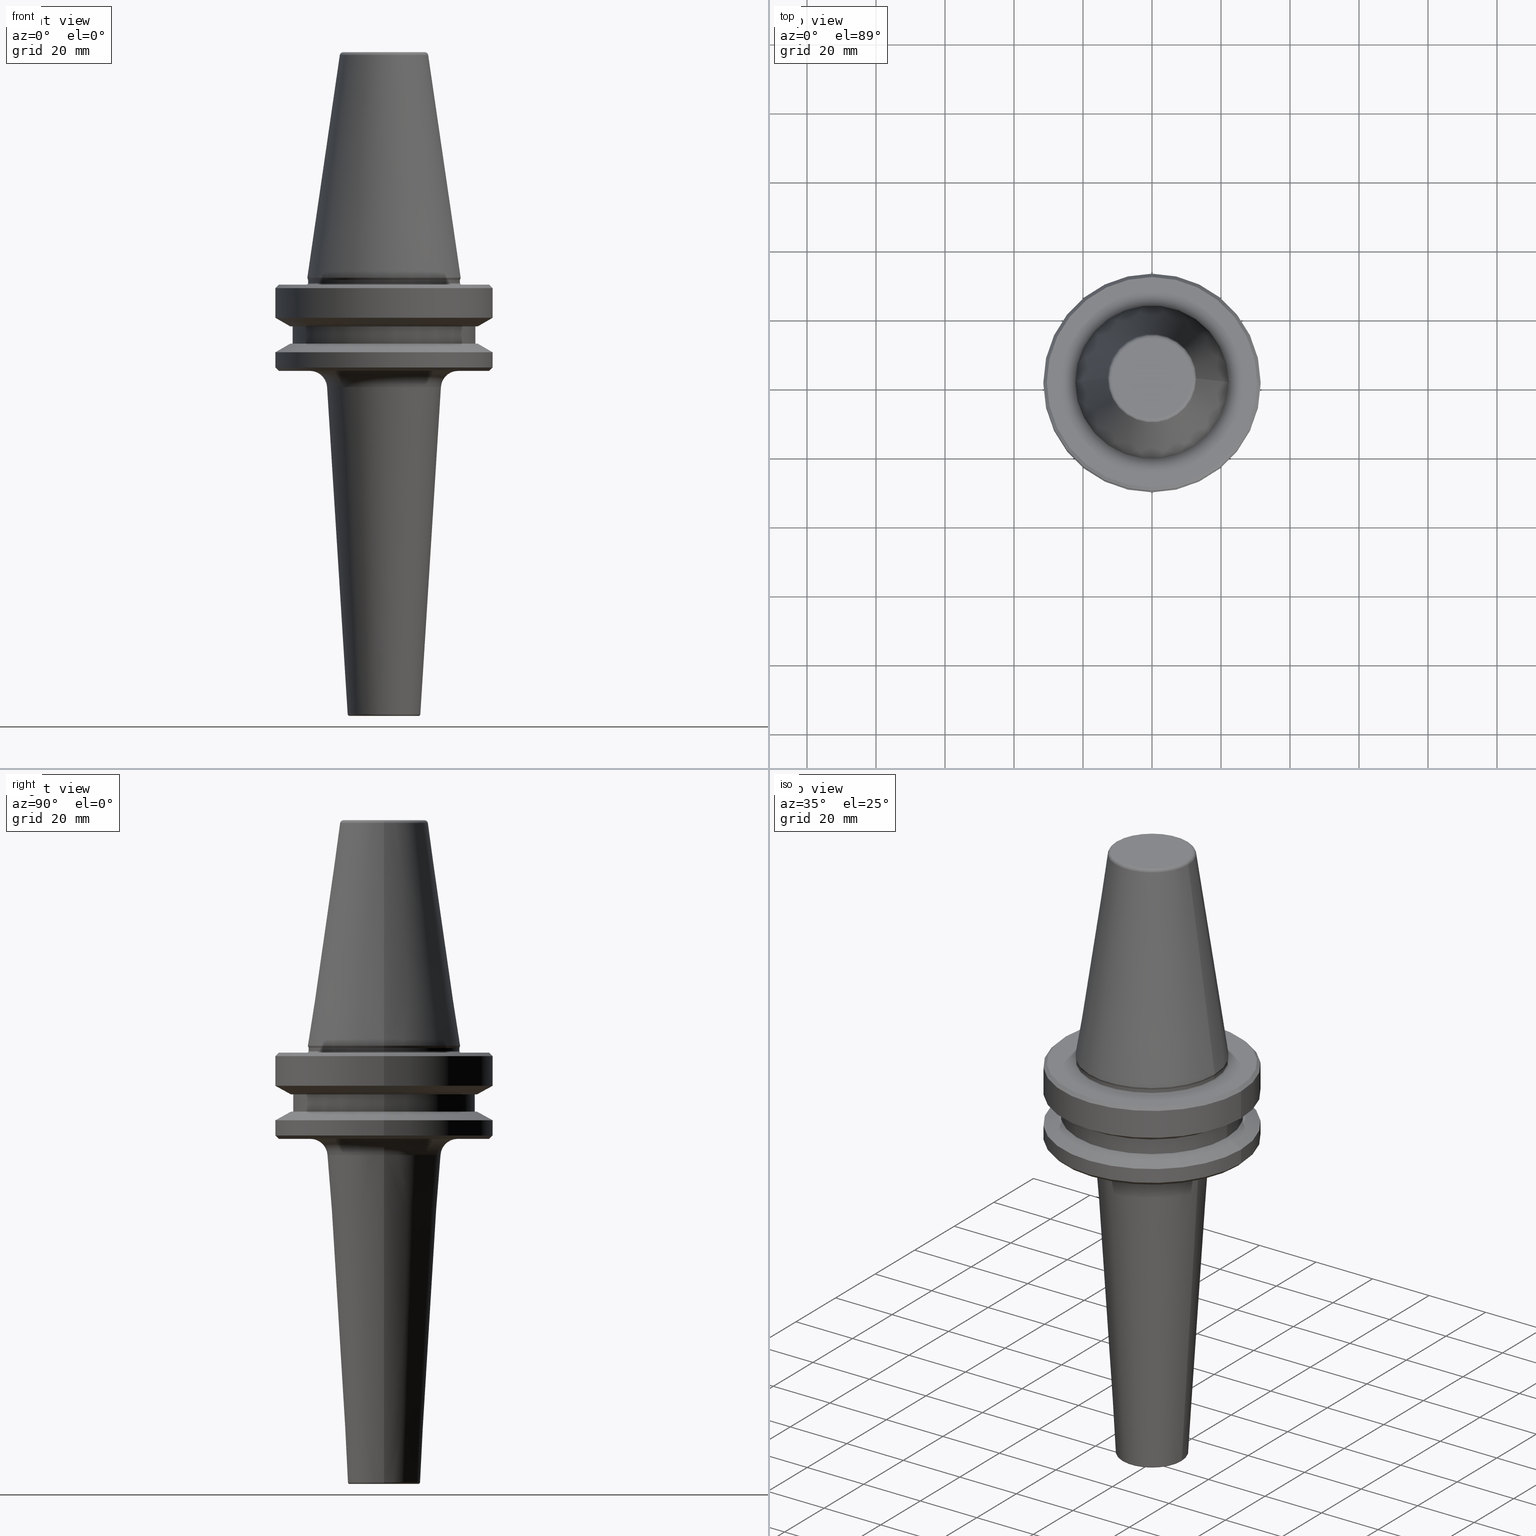
[diagram: canonical four-view strip — front | top / right | iso, engineering-drawing reading convention]
A machine part, canonical four-view strip (front | top / right | iso — engineering-drawing reading convention). The complete STEP part file that produces these views, byte-faithful:
ISO-10303-21;
HEADER;
FILE_DESCRIPTION (( 'STEP AP203' ),
    '1' );
FILE_NAME ('BT40 MCA12 100 AD+B-2.5G 25000 SL.STEP',
    '2019-05-24T10:14:27',
    ( '' ),
    ( '' ),
    'SwSTEP 2.0',
    'SolidWorks 2014',
    '' );
FILE_SCHEMA (( 'CONFIG_CONTROL_DESIGN' ));
ENDSEC;

DATA;
#1 = PRODUCT_RELATED_PRODUCT_CATEGORY ( 'detail', '', ( #357 ) ) ;
#2 = CONICAL_SURFACE ( 'NONE', #143, 31.50000000000008500, 0.7853981633974500600 ) ;
#3 = ORIENTED_EDGE ( 'NONE', *, *, #930, .T. ) ;
#4 = ORIENTED_EDGE ( 'NONE', *, *, #393, .F. ) ;
#5 = CIRCLE ( 'NONE', #936, 27.16962701892322600 ) ;
#6 = APPROVAL_ROLE ( '' ) ;
#7 = ORGANIZATION ( 'UNSPECIFIED', 'UNSPECIFIED', '' ) ;
#8 = LOCAL_TIME ( 15, 44, 27.00000000000000000, #253 ) ;
#9 = PERSON_AND_ORGANIZATION_ROLE ( 'classification_officer' ) ;
#10 = PRODUCT_DEFINITION ( 'UNKNOWN', '', #174, #107 ) ;
#11 = CONICAL_SURFACE ( 'NONE', #997, 12.81220206925736900, 0.1448138077623198300 ) ;
#12 = CARTESIAN_POINT ( 'NONE',  ( 0.0000000000000000000, 0.0000000000000000000, -84.50000000000068200 ) ) ;
#13 = ORIENTED_EDGE ( 'NONE', *, *, #1031, .F. ) ;
#14 = DIRECTION ( 'NONE',  ( 0.0000000000000000000, -1.000000000000000000, 0.0000000000000000000 ) ) ;
#15 = ORIENTED_EDGE ( 'NONE', *, *, #234, .F. ) ;
#16 = LINE ( 'NONE', #948, #920 ) ;
#17 = EDGE_CURVE ( 'NONE', #694, #832, #499, .T. ) ;
#18 = CARTESIAN_POINT ( 'NONE',  ( 22.22499999999993700, 0.0000000000000000000, -65.40000000000057400 ) ) ;
#19 = EDGE_LOOP ( 'NONE', ( #579, #412 ) ) ;
#20 = LINE ( 'NONE', #192, #1051 ) ;
#21 = EDGE_LOOP ( 'NONE', ( #692, #559 ) ) ;
#22 = CARTESIAN_POINT ( 'NONE',  ( 0.0000000000000000000, 0.0000000000000000000, -65.95190515433003500 ) ) ;
#23 = EDGE_CURVE ( 'NONE', #52, #848, #520, .T. ) ;
#24 = APPROVAL_STATUS ( 'not_yet_approved' ) ;
#25 = ORIENTED_EDGE ( 'NONE', *, *, #218, .T. ) ;
#26 = APPROVAL ( #24, 'UNSPECIFIED' ) ;
#27 = EDGE_CURVE ( 'NONE', #128, #749, #46, .T. ) ;
#28 = CARTESIAN_POINT ( 'NONE',  ( 0.0000000000000000000, 0.0000000000000000000, -67.40000000000034700 ) ) ;
#29 = ADVANCED_FACE ( 'NONE', ( #864 ), #541, .T. ) ;
#30 = CIRCLE ( 'NONE', #282, 27.16962701892322600 ) ;
#31 = CALENDAR_DATE ( 2019, 24, 5 ) ;
#32 =( LENGTH_UNIT ( ) NAMED_UNIT ( * ) SI_UNIT ( .MILLI., .METRE. ) );
#33 = DIRECTION ( 'NONE',  ( 1.000000000000000000, 0.0000000000000000000, 0.0000000000000000000 ) ) ;
#34 = DIRECTION ( 'NONE',  ( -0.0000000000000000000, -0.0000000000000000000, 1.000000000000000000 ) ) ;
#35 = DIRECTION ( 'NONE',  ( -1.000000000000000000, 0.0000000000000000000, -0.0000000000000000000 ) ) ;
#36 = CARTESIAN_POINT ( 'NONE',  ( 0.0000000000000000000, 0.0000000000000000000, -76.99985799368391800 ) ) ;
#37 = EDGE_CURVE ( 'NONE', #832, #290, #897, .T. ) ;
#38 = CC_DESIGN_APPROVAL ( #941, ( #289 ) ) ;
#39 = FACE_OUTER_BOUND ( 'NONE', #1002, .T. ) ;
#40 = EDGE_LOOP ( 'NONE', ( #1000, #486, #457, #843 ) ) ;
#41 = ORIENTED_EDGE ( 'NONE', *, *, #627, .F. ) ;
#42 = DIRECTION ( 'NONE',  ( -0.0000000000000000000, -0.0000000000000000000, 1.000000000000000000 ) ) ;
#43 = ORIENTED_EDGE ( 'NONE', *, *, #940, .T. ) ;
#44 = CIRCLE ( 'NONE', #729, 0.4999999999997228900 ) ;
#45 = DIRECTION ( 'NONE',  ( 0.0000000000000000000, 0.0000000000000000000, -1.000000000000000000 ) ) ;
#46 = CIRCLE ( 'NONE', #291, 26.50000000000019200 ) ;
#47 = CARTESIAN_POINT ( 'NONE',  ( -31.50000000000008500, 3.857637417314172900E-015, 6.357346922996331500 ) ) ;
#48 = ORIENTED_EDGE ( 'NONE', *, *, #403, .T. ) ;
#49 = TOROIDAL_SURFACE ( 'NONE', #216, 11.82266927716813000, 0.9999999999999696900 ) ;
#50 = DIRECTION ( 'NONE',  ( 0.0000000000000000000, 0.0000000000000000000, -1.000000000000000000 ) ) ;
#51 = DIRECTION ( 'NONE',  ( -0.0000000000000000000, -0.0000000000000000000, 1.000000000000000000 ) ) ;
#52 = VERTEX_POINT ( 'NONE', #506 ) ;
#53 = CARTESIAN_POINT ( 'NONE',  ( 0.0000000000000000000, 0.0000000000000000000, -65.40000000000057400 ) ) ;
#54 = AXIS2_PLACEMENT_3D ( 'NONE', #159, #651, #724 ) ;
#55 = CARTESIAN_POINT ( 'NONE',  ( 0.0000000000000000000, 0.0000000000000000000, -79.50000000000012800 ) ) ;
#56 = EDGE_LOOP ( 'NONE', ( #946, #592, #25, #704 ) ) ;
#57 = APPLICATION_PROTOCOL_DEFINITION ( 'international standard', 'config_control_design', 1994, #960 ) ;
#58 = ORIENTED_EDGE ( 'NONE', *, *, #494, .F. ) ;
#59 = CARTESIAN_POINT ( 'NONE',  ( 30.49999999999241900, 0.0000000000000000000, -92.40000000000803500 ) ) ;
#60 = DIRECTION ( 'NONE',  ( -0.0000000000000000000, -0.0000000000000000000, 1.000000000000000000 ) ) ;
#61 = LINE ( 'NONE', #383, #280 ) ;
#62 = PERSON_AND_ORGANIZATION ( #512, #7 ) ;
#63 = DIRECTION ( 'NONE',  ( -0.0000000000000000000, -0.0000000000000000000, 1.000000000000000000 ) ) ;
#64 = DIRECTION ( 'NONE',  ( -0.0000000000000000000, -0.0000000000000000000, 1.000000000000000000 ) ) ;
#65 = LINE ( 'NONE', #351, #144 ) ;
#66 = AXIS2_PLACEMENT_3D ( 'NONE', #279, #989, #302 ) ;
#67 = CARTESIAN_POINT ( 'NONE',  ( 0.0000000000000000000, 0.0000000000000000000, -66.08871321165987900 ) ) ;
#68 = DIRECTION ( 'NONE',  ( 0.8660254037844332700, 1.060575238724900300E-016, -0.5000000000000093300 ) ) ;
#69 = APPROVAL ( #156, 'UNSPECIFIED' ) ;
#70 = VERTEX_POINT ( 'NONE', #353 ) ;
#71 = CYLINDRICAL_SURFACE ( 'NONE', #926, 22.00000000000002100 ) ;
#72 = ORIENTED_EDGE ( 'NONE', *, *, #180, .F. ) ;
#73 = ORIENTED_EDGE ( 'NONE', *, *, #776, .F. ) ;
#74 = CARTESIAN_POINT ( 'NONE',  ( 30.49999999999997200, 3.796405077356798300E-015, -67.40000000000034700 ) ) ;
#75 = CIRCLE ( 'NONE', #471, 0.4000000000001536800 ) ;
#76 = ADVANCED_FACE ( 'NONE', ( #522 ), #2, .T. ) ;
#77 = ORIENTED_EDGE ( 'NONE', *, *, #537, .F. ) ;
#78 = FACE_OUTER_BOUND ( 'NONE', #1043, .T. ) ;
#79 = DIRECTION ( 'NONE',  ( 1.000000000000000000, 0.0000000000000000000, 0.0000000000000000000 ) ) ;
#80 = EDGE_CURVE ( 'NONE', #1027, #919, #547, .T. ) ;
#81 = ORIENTED_EDGE ( 'NONE', *, *, #1031, .T. ) ;
#82 = DIRECTION ( 'NONE',  ( -0.0000000000000000000, -0.0000000000000000000, 1.000000000000000000 ) ) ;
#83 = DIRECTION ( 'NONE',  ( 1.000000000000000000, 0.0000000000000000000, 0.0000000000000000000 ) ) ;
#84 = ORIENTED_EDGE ( 'NONE', *, *, #679, .T. ) ;
#85 = CIRCLE ( 'NONE', #508, 22.22499999999993700 ) ;
#86 = DIRECTION ( 'NONE',  ( 1.000000000000000000, 0.0000000000000000000, 0.0000000000000000000 ) ) ;
#87 = DIRECTION ( 'NONE',  ( 1.000000000000000000, 0.0000000000000000000, 0.0000000000000000000 ) ) ;
#88 = EDGE_LOOP ( 'NONE', ( #949, #211, #753, #846 ) ) ;
#89 = DIRECTION ( 'NONE',  ( -0.0000000000000000000, -0.0000000000000000000, 1.000000000000000000 ) ) ;
#90 = VECTOR ( 'NONE', #259, 1000.000000000000000 ) ;
#91 = AXIS2_PLACEMENT_3D ( 'NONE', #874, #476, #411 ) ;
#92 = CC_DESIGN_PERSON_AND_ORGANIZATION_ASSIGNMENT ( #912, #131, ( #174 ) ) ;
#93 = DIRECTION ( 'NONE',  ( 1.224646799147353200E-016, 1.000000000000000000, 0.0000000000000000000 ) ) ;
#94 = EDGE_CURVE ( 'NONE', #182, #892, #65, .T. ) ;
#95 = AXIS2_PLACEMENT_3D ( 'NONE', #820, #388, #432 ) ;
#96 = CLOSED_SHELL ( 'NONE', ( #854, #365, #439, #538, #999, #190, #101, #521, #621, #29, #917, #777, #188, #462, #76, #184, #111, #196, #146, #157, #738, #966, #311, #431, #871, #576, #1052, #985, #517, #209, #957, #384, #149, #447, #204, #482, #401, #168 ) ) ;
#97 = EDGE_LOOP ( 'NONE', ( #714, #335 ) ) ;
#98 = LINE ( 'NONE', #571, #737 ) ;
#99 = DIRECTION ( 'NONE',  ( -0.0000000000000000000, -0.0000000000000000000, 1.000000000000000000 ) ) ;
#100 = EDGE_LOOP ( 'NONE', ( #841, #315, #4, #903 ) ) ;
#101 = ADVANCED_FACE ( 'NONE', ( #674 ), #71, .T. ) ;
#102 = AXIS2_PLACEMENT_3D ( 'NONE', #440, #974, #405 ) ;
#103 = CARTESIAN_POINT ( 'NONE',  ( 0.0000000000000000000, 0.0000000000000000000, -91.40000000000037500 ) ) ;
#104 = EDGE_CURVE ( 'NONE', #919, #835, #287, .T. ) ;
#105 = CYLINDRICAL_SURFACE ( 'NONE', #1046, 26.50000000000019200 ) ;
#106 = DIRECTION ( 'NONE',  ( 1.224646799147353200E-016, 1.000000000000000000, 0.0000000000000000000 ) ) ;
#107 = DESIGN_CONTEXT ( 'detailed design', #727, 'design' ) ;
#108 = CARTESIAN_POINT ( 'NONE',  ( 0.0000000000000000000, 0.0000000000000000000, -66.08871321165987900 ) ) ;
#109 = ORIENTED_EDGE ( 'NONE', *, *, #659, .F. ) ;
#110 = AXIS2_PLACEMENT_3D ( 'NONE', #154, #577, #147 ) ;
#111 = ADVANCED_FACE ( 'NONE', ( #915 ), #825, .F. ) ;
#112 = LINE ( 'NONE', #1029, #751 ) ;
#113 = ORIENTED_EDGE ( 'NONE', *, *, #808, .F. ) ;
#114 = CARTESIAN_POINT ( 'NONE',  ( 0.0000000000000000000, 0.0000000000000000000, -67.40000000000034700 ) ) ;
#115 = LINE ( 'NONE', #1037, #959 ) ;
#116 = DIRECTION ( 'NONE',  ( -1.000000000000000000, 0.0000000000000000000, 0.0000000000000000000 ) ) ;
#117 = DIRECTION ( 'NONE',  ( 1.000000000000000000, 0.0000000000000000000, 0.0000000000000000000 ) ) ;
#118 = EDGE_CURVE ( 'NONE', #126, #185, #693, .T. ) ;
#119 = AXIS2_PLACEMENT_3D ( 'NONE', #551, #1014, #850 ) ;
#120 = CARTESIAN_POINT ( 'NONE',  ( 0.0000000000000000000, 0.0000000000000000000, -65.95190515433003500 ) ) ;
#121 = VERTEX_POINT ( 'NONE', #731 ) ;
#122 = CC_DESIGN_APPROVAL ( #26, ( #10 ) ) ;
#123 = CARTESIAN_POINT ( 'NONE',  ( -10.03048518445072900, 1.258935846277514100E-015, -192.4000000000080500 ) ) ;
#124 = ORIENTED_EDGE ( 'NONE', *, *, #788, .F. ) ;
#125 = CARTESIAN_POINT ( 'NONE',  ( 0.0000000000000000000, 0.0000000000000000000, -79.50000000000012800 ) ) ;
#126 = VERTEX_POINT ( 'NONE', #1018 ) ;
#127 = CIRCLE ( 'NONE', #696, 30.49999999999997200 ) ;
#128 = VERTEX_POINT ( 'NONE', #1022 ) ;
#129 = DIRECTION ( 'NONE',  ( -0.0000000000000000000, -0.0000000000000000000, 1.000000000000000000 ) ) ;
#130 = AXIS2_PLACEMENT_3D ( 'NONE', #67, #129, #711 ) ;
#131 = PERSON_AND_ORGANIZATION_ROLE ( 'design_supplier' ) ;
#132 = EDGE_CURVE ( 'NONE', #981, #794, #875, .T. ) ;
#133 = CIRCLE ( 'NONE', #979, 11.82266927716813000 ) ;
#134 = DIRECTION ( 'NONE',  ( 1.000000000000000000, 0.0000000000000000000, 0.0000000000000000000 ) ) ;
#135 = CARTESIAN_POINT ( 'NONE',  ( 0.0000000000000000000, 0.0000000000000000000, -191.9314126950373200 ) ) ;
#136 = ORIENTED_EDGE ( 'NONE', *, *, #379, .T. ) ;
#137 = ORIENTED_EDGE ( 'NONE', *, *, #487, .F. ) ;
#138 = FACE_OUTER_BOUND ( 'NONE', #894, .T. ) ;
#139 = DIRECTION ( 'NONE',  ( -0.0000000000000000000, -0.0000000000000000000, 1.000000000000000000 ) ) ;
#140 = DIRECTION ( 'NONE',  ( 0.7071067811865487900, 0.0000000000000000000, 0.7071067811865463500 ) ) ;
#141 = VECTOR ( 'NONE', #324, 999.9999999999998900 ) ;
#142 = CARTESIAN_POINT ( 'NONE',  ( 0.0000000000000000000, 0.0000000000000000000, -84.50000000000068200 ) ) ;
#143 = AXIS2_PLACEMENT_3D ( 'NONE', #263, #1047, #580 ) ;
#144 = VECTOR ( 'NONE', #956, 1000.000000000000000 ) ;
#145 = ORIENTED_EDGE ( 'NONE', *, *, #265, .T. ) ;
#146 = ADVANCED_FACE ( 'NONE', ( #566 ), #685, .T. ) ;
#147 = DIRECTION ( 'NONE',  ( -1.000000000000000000, 0.0000000000000000000, 0.0000000000000000000 ) ) ;
#148 = DIRECTION ( 'NONE',  ( -0.0000000000000000000, -0.0000000000000000000, 1.000000000000000000 ) ) ;
#149 = ADVANCED_FACE ( 'NONE', ( #596 ), #11, .T. ) ;
#150 = AXIS2_PLACEMENT_3D ( 'NONE', #426, #484, #565 ) ;
#151 = CARTESIAN_POINT ( 'NONE',  ( 31.50000000000008500, 0.0000000000000000000, -76.99985799368391800 ) ) ;
#152 = PERSON_AND_ORGANIZATION ( #512, #7 ) ;
#153 = AXIS2_PLACEMENT_3D ( 'NONE', #884, #1001, #464 ) ;
#154 = CARTESIAN_POINT ( 'NONE',  ( 0.0000000000000000000, 0.0000000000000000000, -67.40000000000034700 ) ) ;
#155 = TOROIDAL_SURFACE ( 'NONE', #849, 10.03048518445072900, 0.4999999999997116200 ) ;
#156 = APPROVAL_STATUS ( 'not_yet_approved' ) ;
#157 = ADVANCED_FACE ( 'NONE', ( #893 ), #889, .T. ) ;
#158 = CC_DESIGN_PERSON_AND_ORGANIZATION_ASSIGNMENT ( #700, #9, ( #289 ) ) ;
#159 = CARTESIAN_POINT ( 'NONE',  ( 0.0000000000000000000, 0.0000000000000000000, -4.440892098500626200E-013 ) ) ;
#160 = DIRECTION ( 'NONE',  ( -0.0000000000000000000, -0.0000000000000000000, 1.000000000000000000 ) ) ;
#161 = VERTEX_POINT ( 'NONE', #636 ) ;
#162 = ORIENTED_EDGE ( 'NONE', *, *, #461, .F. ) ;
#163 = CARTESIAN_POINT ( 'NONE',  ( 0.0000000000000000000, 0.0000000000000000000, -1.000000000000334000 ) ) ;
#164 = CARTESIAN_POINT ( 'NONE',  ( 0.0000000000000000000, 0.0000000000000000000, -66.90000000000040400 ) ) ;
#165 = AXIS2_PLACEMENT_3D ( 'NONE', #164, #528, #298 ) ;
#166 = AXIS2_PLACEMENT_3D ( 'NONE', #310, #758, #224 ) ;
#167 = FACE_OUTER_BOUND ( 'NONE', #198, .T. ) ;
#168 = ADVANCED_FACE ( 'NONE', ( #264 ), #227, .T. ) ;
#169 = ORIENTED_EDGE ( 'NONE', *, *, #913, .T. ) ;
#170 = AXIS2_PLACEMENT_3D ( 'NONE', #928, #501, #1003 ) ;
#171 = ORIENTED_EDGE ( 'NONE', *, *, #379, .F. ) ;
#172 = DIRECTION ( 'NONE',  ( -0.0000000000000000000, -0.0000000000000000000, 1.000000000000000000 ) ) ;
#173 = ORIENTED_EDGE ( 'NONE', *, *, #659, .T. ) ;
#174 = PRODUCT_DEFINITION_FORMATION_WITH_SPECIFIED_SOURCE ( 'ANY', '', #357, .NOT_KNOWN. ) ;
#175 = CIRCLE ( 'NONE', #836, 22.00000000000002100 ) ;
#176 = FACE_OUTER_BOUND ( 'NONE', #402, .T. ) ;
#177 = DIRECTION ( 'NONE',  ( 1.000000000000000000, 0.0000000000000000000, 0.0000000000000000000 ) ) ;
#178 = CARTESIAN_POINT ( 'NONE',  ( 0.0000000000000000000, 0.0000000000000000000, -191.9000000000083000 ) ) ;
#179 = AXIS2_PLACEMENT_3D ( 'NONE', #655, #63, #863 ) ;
#180 = EDGE_CURVE ( 'NONE', #743, #121, #657, .T. ) ;
#181 = AXIS2_PLACEMENT_3D ( 'NONE', #667, #93, #586 ) ;
#182 = VERTEX_POINT ( 'NONE', #733 ) ;
#183 = CARTESIAN_POINT ( 'NONE',  ( 0.0000000000000000000, 0.0000000000000000000, -1.000000000000334000 ) ) ;
#184 = ADVANCED_FACE ( 'NONE', ( #39 ), #284, .F. ) ;
#185 = VERTEX_POINT ( 'NONE', #492 ) ;
#186 = EDGE_CURVE ( 'NONE', #205, #732, #474, .T. ) ;
#187 = PERSON_AND_ORGANIZATION ( #512, #7 ) ;
#188 = ADVANCED_FACE ( 'NONE', ( #453 ), #600, .T. ) ;
#189 = DIRECTION ( 'NONE',  ( -0.0000000000000000000, -0.0000000000000000000, 1.000000000000000000 ) ) ;
#190 = ADVANCED_FACE ( 'NONE', ( #1042 ), #1015, .F. ) ;
#191 = EDGE_CURVE ( 'NONE', #794, #394, #193, .T. ) ;
#192 = CARTESIAN_POINT ( 'NONE',  ( -22.22499999999993700, 2.721777511104985000E-015, -65.40000000000057400 ) ) ;
#193 = LINE ( 'NONE', #969, #838 ) ;
#194 = AXIS2_PLACEMENT_3D ( 'NONE', #531, #831, #906 ) ;
#195 = ORIENTED_EDGE ( 'NONE', *, *, #1039, .T. ) ;
#196 = ADVANCED_FACE ( 'NONE', ( #434, #822 ), #698, .F. ) ;
#197 = ORIENTED_EDGE ( 'NONE', *, *, #697, .F. ) ;
#198 = EDGE_LOOP ( 'NONE', ( #768, #767 ) ) ;
#199 = EDGE_CURVE ( 'NONE', #641, #286, #991, .T. ) ;
#200 = CARTESIAN_POINT ( 'NONE',  ( 0.0000000000000000000, -5.323942611196482600E-013, -192.4000000000080200 ) ) ;
#201 = CONICAL_SURFACE ( 'NONE', #153, 31.50000000000008500, 1.047197551196597400 ) ;
#202 = EDGE_LOOP ( 'NONE', ( #1011, #763, #786, #868 ) ) ;
#203 = FACE_OUTER_BOUND ( 'NONE', #56, .T. ) ;
#204 = ADVANCED_FACE ( 'NONE', ( #167 ), #328, .F. ) ;
#205 = VERTEX_POINT ( 'NONE', #544 ) ;
#206 = EDGE_LOOP ( 'NONE', ( #993, #400, #689, #1030 ) ) ;
#207 = EDGE_CURVE ( 'NONE', #126, #515, #398, .T. ) ;
#208 = CARTESIAN_POINT ( 'NONE',  ( 0.0000000000000000000, 0.0000000000000000000, 6.357346922996331500 ) ) ;
#209 = ADVANCED_FACE ( 'NONE', ( #793 ), #766, .T. ) ;
#210 = CC_DESIGN_PERSON_AND_ORGANIZATION_ASSIGNMENT ( #187, #873, ( #10 ) ) ;
#211 = ORIENTED_EDGE ( 'NONE', *, *, #800, .T. ) ;
#212 = CARTESIAN_POINT ( 'NONE',  ( 0.0000000000000000000, 0.0000000000000000000, -66.08871321165987900 ) ) ;
#213 = DIRECTION ( 'NONE',  ( 0.0000000000000000000, 0.0000000000000000000, -1.000000000000000000 ) ) ;
#214 = EDGE_LOOP ( 'NONE', ( #861, #3, #770, #569 ) ) ;
#215 = COORDINATED_UNIVERSAL_TIME_OFFSET ( 5, 30, .AHEAD. ) ;
#216 = AXIS2_PLACEMENT_3D ( 'NONE', #163, #1008, #442 ) ;
#217 = CARTESIAN_POINT ( 'NONE',  ( 0.0000000000000000000, 0.0000000000000000000, 6.357346922996331500 ) ) ;
#218 = EDGE_CURVE ( 'NONE', #796, #610, #973, .T. ) ;
#219 = ORIENTED_EDGE ( 'NONE', *, *, #327, .T. ) ;
#220 = CARTESIAN_POINT ( 'NONE',  ( 31.50000000000008500, 0.0000000000000000000, -68.40000000000046000 ) ) ;
#221 = DIRECTION ( 'NONE',  ( 1.000000000000000000, 0.0000000000000000000, 0.0000000000000000000 ) ) ;
#222 = AXIS2_PLACEMENT_3D ( 'NONE', #954, #148, #555 ) ;
#223 = DIRECTION ( 'NONE',  ( 1.000000000000000000, 0.0000000000000000000, 0.0000000000000000000 ) ) ;
#224 = DIRECTION ( 'NONE',  ( -1.000000000000000000, 1.224646799147354400E-016, 0.0000000000000000000 ) ) ;
#225 = EDGE_CURVE ( 'NONE', #185, #909, #133, .T. ) ;
#226 = CARTESIAN_POINT ( 'NONE',  ( -22.00000000000002100, 2.694222958124179600E-015, 6.357346922996331500 ) ) ;
#227 = CONICAL_SURFACE ( 'NONE', #773, 16.50000000000000000, 0.06286679258400508500 ) ;
#228 = EDGE_LOOP ( 'NONE', ( #81, #313, #395, #297 ) ) ;
#229 = DIRECTION ( 'NONE',  ( -0.0000000000000000000, -0.0000000000000000000, 1.000000000000000000 ) ) ;
#230 = ORIENTED_EDGE ( 'NONE', *, *, #930, .F. ) ;
#231 = DIRECTION ( 'NONE',  ( 1.000000000000000000, 0.0000000000000000000, 0.0000000000000000000 ) ) ;
#232 = DIRECTION ( 'NONE',  ( 0.0000000000000000000, 0.0000000000000000000, -1.000000000000000000 ) ) ;
#233 = VECTOR ( 'NONE', #1007, 1000.000000000000000 ) ;
#234 = EDGE_CURVE ( 'NONE', #835, #919, #371, .T. ) ;
#235 = CARTESIAN_POINT ( 'NONE',  ( -22.40000000000019800, 2.743208830090095500E-015, -66.08871321165987900 ) ) ;
#236 = FACE_OUTER_BOUND ( 'NONE', #713, .T. ) ;
#237 = DIRECTION ( 'NONE',  ( 0.0000000000000000000, -1.000000000000000000, 0.0000000000000000000 ) ) ;
#238 = VERTEX_POINT ( 'NONE', #530 ) ;
#239 = ORIENTED_EDGE ( 'NONE', *, *, #924, .T. ) ;
#240 = CARTESIAN_POINT ( 'NONE',  ( 16.50000000000000000, 0.0000000000000000000, -97.08587304971779000 ) ) ;
#241 = AXIS2_PLACEMENT_3D ( 'NONE', #409, #229, #243 ) ;
#242 = CARTESIAN_POINT ( 'NONE',  ( 0.0000000000000000000, 0.0000000000000000000, -84.50000000000068200 ) ) ;
#243 = DIRECTION ( 'NONE',  ( 1.000000000000000000, 0.0000000000000000000, 0.0000000000000000000 ) ) ;
#244 = ORIENTED_EDGE ( 'NONE', *, *, #104, .T. ) ;
#245 = AXIS2_PLACEMENT_3D ( 'NONE', #380, #60, #83 ) ;
#246 = DIRECTION ( 'NONE',  ( 1.224646799147353200E-016, 1.000000000000000000, 0.0000000000000000000 ) ) ;
#247 = APPROVAL_ROLE ( '' ) ;
#248 = AXIS2_PLACEMENT_3D ( 'NONE', #293, #980, #455 ) ;
#249 = SHAPE_DEFINITION_REPRESENTATION ( #256, #595 ) ;
#250 = DIRECTION ( 'NONE',  ( 1.000000000000000000, 0.0000000000000000000, 0.0000000000000000000 ) ) ;
#251 = APPLICATION_PROTOCOL_DEFINITION ( 'international standard', 'config_control_design', 1994, #727 ) ;
#252 = CIRCLE ( 'NONE', #222, 26.50000000000019200 ) ;
#253 = COORDINATED_UNIVERSAL_TIME_OFFSET ( 5, 30, .AHEAD. ) ;
#254 = ORIENTED_EDGE ( 'NONE', *, *, #513, .F. ) ;
#255 = DIRECTION ( 'NONE',  ( -0.0000000000000000000, -0.0000000000000000000, 1.000000000000000000 ) ) ;
#256 = PRODUCT_DEFINITION_SHAPE ( 'NONE', 'NONE',  #10 ) ;
#257 = CC_DESIGN_APPROVAL ( #69, ( #174 ) ) ;
#258 = CARTESIAN_POINT ( 'NONE',  ( 31.50000000000008500, 0.0000000000000000000, 6.357346922996331500 ) ) ;
#259 = DIRECTION ( 'NONE',  ( -0.0000000000000000000, -0.0000000000000000000, 1.000000000000000000 ) ) ;
#260 = AXIS2_PLACEMENT_3D ( 'NONE', #824, #255, #390 ) ;
#261 = DIRECTION ( 'NONE',  ( 0.7071067811865474600, 8.659560562354931600E-017, -0.7071067811865475700 ) ) ;
#262 = PLANE ( 'NONE',  #887 ) ;
#263 = CARTESIAN_POINT ( 'NONE',  ( 0.0000000000000000000, 0.0000000000000000000, -91.40000000000037500 ) ) ;
#264 = FACE_OUTER_BOUND ( 'NONE', #1020, .T. ) ;
#265 = EDGE_CURVE ( 'NONE', #732, #561, #582, .T. ) ;
#266 = EDGE_LOOP ( 'NONE', ( #387, #787, #43, #1053 ) ) ;
#267 = DIRECTION ( 'NONE',  ( 1.000000000000000000, 0.0000000000000000000, 0.0000000000000000000 ) ) ;
#268 = VECTOR ( 'NONE', #750, 1000.000000000000000 ) ;
#269 = DIRECTION ( 'NONE',  ( 1.000000000000000000, 0.0000000000000000000, 0.0000000000000000000 ) ) ;
#270 = VERTEX_POINT ( 'NONE', #701 ) ;
#271 = CIRCLE ( 'NONE', #102, 21.49012266974484200 ) ;
#272 = DIRECTION ( 'NONE',  ( 1.000000000000000000, 0.0000000000000000000, 0.0000000000000000000 ) ) ;
#273 = DIRECTION ( 'NONE',  ( 1.000000000000000000, 0.0000000000000000000, 0.0000000000000000000 ) ) ;
#274 = CARTESIAN_POINT ( 'NONE',  ( 0.0000000000000000000, 0.0000000000000000000, -79.50000000000012800 ) ) ;
#275 = ORIENTED_EDGE ( 'NONE', *, *, #337, .F. ) ;
#276 = DIRECTION ( 'NONE',  ( -0.0000000000000000000, -0.0000000000000000000, 1.000000000000000000 ) ) ;
#277 = ORIENTED_EDGE ( 'NONE', *, *, #616, .T. ) ;
#278 = ORIENTED_EDGE ( 'NONE', *, *, #80, .T. ) ;
#279 = CARTESIAN_POINT ( 'NONE',  ( 0.0000000000000000000, 0.0000000000000000000, 6.357346922996331500 ) ) ;
#280 = VECTOR ( 'NONE', #570, 999.9999999999998900 ) ;
#281 = LOCAL_TIME ( 15, 44, 27.00000000000000000, #490 ) ;
#282 = AXIS2_PLACEMENT_3D ( 'NONE', #55, #64, #568 ) ;
#283 = DATE_TIME_ROLE ( 'creation_date' ) ;
#284 = TOROIDAL_SURFACE ( 'NONE', #1009, 21.49012266974484200, 5.000000000000003600 ) ;
#285 = DIRECTION ( 'NONE',  ( 1.000000000000000000, 0.0000000000000000000, 0.0000000000000000000 ) ) ;
#286 = VERTEX_POINT ( 'NONE', #483 ) ;
#287 = CIRCLE ( 'NONE', #179, 31.50000000000008500 ) ;
#288 = VERTEX_POINT ( 'NONE', #318 ) ;
#289 = SECURITY_CLASSIFICATION ( '', '', #397 ) ;
#290 = VERTEX_POINT ( 'NONE', #240 ) ;
#291 = AXIS2_PLACEMENT_3D ( 'NONE', #142, #172, #272 ) ;
#292 = CIRCLE ( 'NONE', #54, 11.82266927716813000 ) ;
#293 = CARTESIAN_POINT ( 'NONE',  ( 0.0000000000000000000, 0.0000000000000000000, -192.4000000000080500 ) ) ;
#294 = CIRCLE ( 'NONE', #170, 31.50000000000008500 ) ;
#295 = AXIS2_PLACEMENT_3D ( 'NONE', #856, #45, #444 ) ;
#296 = EDGE_CURVE ( 'NONE', #749, #641, #532, .T. ) ;
#297 = ORIENTED_EDGE ( 'NONE', *, *, #429, .F. ) ;
#298 = DIRECTION ( 'NONE',  ( 1.000000000000000000, 0.0000000000000000000, 0.0000000000000000000 ) ) ;
#299 =( GEOMETRIC_REPRESENTATION_CONTEXT ( 3 ) GLOBAL_UNCERTAINTY_ASSIGNED_CONTEXT ( ( #1005 ) ) GLOBAL_UNIT_ASSIGNED_CONTEXT ( ( #32, #962, #648 ) ) REPRESENTATION_CONTEXT ( 'NONE', 'WORKASPACE' ) );
#300 = DIRECTION ( 'NONE',  ( -0.7071067811865487900, 8.659560562354948900E-017, 0.7071067811865463500 ) ) ;
#301 = AXIS2_PLACEMENT_3D ( 'NONE', #1026, #246, #644 ) ;
#302 = DIRECTION ( 'NONE',  ( 1.000000000000000000, 0.0000000000000000000, 0.0000000000000000000 ) ) ;
#303 = AXIS2_PLACEMENT_3D ( 'NONE', #125, #314, #865 ) ;
#304 = DIRECTION ( 'NONE',  ( -1.000000000000000000, 0.0000000000000000000, 0.0000000000000000000 ) ) ;
#305 = CIRCLE ( 'NONE', #260, 27.16962701892256100 ) ;
#306 = APPROVAL_DATE_TIME ( #518, #69 ) ;
#307 = AXIS2_PLACEMENT_3D ( 'NONE', #36, #853, #308 ) ;
#308 = DIRECTION ( 'NONE',  ( 1.000000000000000000, 0.0000000000000000000, 0.0000000000000000000 ) ) ;
#309 = DIRECTION ( 'NONE',  ( -0.0000000000000000000, -0.0000000000000000000, 1.000000000000000000 ) ) ;
#310 = CARTESIAN_POINT ( 'NONE',  ( -22.49999999999996400, 2.755455298081540400E-015, -66.90000000000040400 ) ) ;
#311 = ADVANCED_FACE ( 'NONE', ( #355 ), #105, .T. ) ;
#312 = CARTESIAN_POINT ( 'NONE',  ( 26.50000000000019200, 0.0000000000000000000, 6.357346922996331500 ) ) ;
#313 = ORIENTED_EDGE ( 'NONE', *, *, #814, .T. ) ;
#314 = DIRECTION ( 'NONE',  ( -0.0000000000000000000, -0.0000000000000000000, 1.000000000000000000 ) ) ;
#315 = ORIENTED_EDGE ( 'NONE', *, *, #905, .T. ) ;
#316 = DIRECTION ( 'NONE',  ( 1.000000000000000000, 0.0000000000000000000, 0.0000000000000000000 ) ) ;
#317 = CARTESIAN_POINT ( 'NONE',  ( 22.02412295168553100, 0.0000000000000000000, -65.95190515433003500 ) ) ;
#318 = CARTESIAN_POINT ( 'NONE',  ( -27.16962701892322600, 3.592478546794674900E-015, -79.50000000000012800 ) ) ;
#319 = EDGE_CURVE ( 'NONE', #610, #796, #952, .T. ) ;
#320 = ORIENTED_EDGE ( 'NONE', *, *, #327, .F. ) ;
#321 = VECTOR ( 'NONE', #821, 1000.000000000000000 ) ;
#322 = DIRECTION ( 'NONE',  ( -0.7071067811865474600, 0.0000000000000000000, -0.7071067811865475700 ) ) ;
#323 = ORIENTED_EDGE ( 'NONE', *, *, #80, .F. ) ;
#324 = DIRECTION ( 'NONE',  ( 0.06282539005804296800, 0.0000000000000000000, 0.9980245339489680600 ) ) ;
#325 = ORIENTED_EDGE ( 'NONE', *, *, #94, .T. ) ;
#326 = DIRECTION ( 'NONE',  ( 1.000000000000000000, 0.0000000000000000000, 0.0000000000000000000 ) ) ;
#327 = EDGE_CURVE ( 'NONE', #238, #394, #85, .T. ) ;
#328 = PLANE ( 'NONE',  #902 ) ;
#329 = VECTOR ( 'NONE', #423, 1000.000000000000000 ) ;
#330 = VERTEX_POINT ( 'NONE', #728 ) ;
#331 = ORIENTED_EDGE ( 'NONE', *, *, #776, .T. ) ;
#332 = CARTESIAN_POINT ( 'NONE',  ( -21.49012266974484200, 2.631780994078700200E-015, -92.40000000000800600 ) ) ;
#333 = DIRECTION ( 'NONE',  ( 0.0000000000000000000, 0.0000000000000000000, -1.000000000000000000 ) ) ;
#334 = CIRCLE ( 'NONE', #526, 30.49999999999241900 ) ;
#335 = ORIENTED_EDGE ( 'NONE', *, *, #487, .T. ) ;
#336 = CIRCLE ( 'NONE', #879, 0.9999999999999696900 ) ;
#337 = EDGE_CURVE ( 'NONE', #709, #694, #556, .T. ) ;
#338 = CARTESIAN_POINT ( 'NONE',  ( 0.0000000000000000000, 0.0000000000000000000, -97.40000000000800600 ) ) ;
#339 = AXIS2_PLACEMENT_3D ( 'NONE', #22, #359, #460 ) ;
#340 = EDGE_CURVE ( 'NONE', #161, #524, #815, .T. ) ;
#341 = CARTESIAN_POINT ( 'NONE',  ( 27.16962701892256100, 3.592478546794633900E-015, -84.50000000000068200 ) ) ;
#342 = CARTESIAN_POINT ( 'NONE',  ( -26.50000000000019200, 3.245314017740509400E-015, 6.357346922996331500 ) ) ;
#343 = ORIENTED_EDGE ( 'NONE', *, *, #17, .F. ) ;
#344 = CARTESIAN_POINT ( 'NONE',  ( -30.49999999999997200, 0.0000000000000000000, -67.40000000000034700 ) ) ;
#345 = DIRECTION ( 'NONE',  ( 1.000000000000000000, 0.0000000000000000000, 0.0000000000000000000 ) ) ;
#346 = ORIENTED_EDGE ( 'NONE', *, *, #319, .F. ) ;
#347 = AXIS2_PLACEMENT_3D ( 'NONE', #435, #237, #619 ) ;
#348 = DIRECTION ( 'NONE',  ( 0.0000000000000000000, 0.0000000000000000000, -1.000000000000000000 ) ) ;
#349 = ORIENTED_EDGE ( 'NONE', *, *, #680, .T. ) ;
#350 = CONICAL_SURFACE ( 'NONE', #789, 22.22499999999993700, 0.3490658503994643600 ) ;
#351 = CARTESIAN_POINT ( 'NONE',  ( -31.50000000000008500, 0.0000000000000000000, -87.00014200631733300 ) ) ;
#352 = DIRECTION ( 'NONE',  ( 1.000000000000000000, 0.0000000000000000000, 0.0000000000000000000 ) ) ;
#353 = CARTESIAN_POINT ( 'NONE',  ( -22.00000000000002100, 2.724839128102860200E-015, -66.90000000000040400 ) ) ;
#354 = DIRECTION ( 'NONE',  ( -0.0000000000000000000, -0.0000000000000000000, 1.000000000000000000 ) ) ;
#355 = FACE_OUTER_BOUND ( 'NONE', #647, .T. ) ;
#356 = CARTESIAN_POINT ( 'NONE',  ( -22.49999999999996400, 2.755455298081540400E-015, -67.40000000000034700 ) ) ;
#357 = PRODUCT ( 'BT40 MCA12 100 AD+B-2.5G 25000 SL', 'BT40 MCA12 100 AD+B-2.5G 25000 SL', '', ( #634 ) ) ;
#358 = ORIENTED_EDGE ( 'NONE', *, *, #616, .F. ) ;
#359 = DIRECTION ( 'NONE',  ( -0.0000000000000000000, -0.0000000000000000000, 1.000000000000000000 ) ) ;
#360 = VERTEX_POINT ( 'NONE', #420 ) ;
#361 = CIRCLE ( 'NONE', #845, 27.16962701892256100 ) ;
#362 = DIRECTION ( 'NONE',  ( -0.0000000000000000000, -0.0000000000000000000, 1.000000000000000000 ) ) ;
#363 = CONICAL_SURFACE ( 'NONE', #110, 30.49999999999997200, 0.7853981633974482800 ) ;
#364 = DIRECTION ( 'NONE',  ( -0.0000000000000000000, -0.0000000000000000000, 1.000000000000000000 ) ) ;
#365 = ADVANCED_FACE ( 'NONE', ( #391 ), #155, .T. ) ;
#366 = ORIENTED_EDGE ( 'NONE', *, *, #207, .T. ) ;
#367 = CIRCLE ( 'NONE', #628, 31.50000000000008500 ) ;
#368 = EDGE_LOOP ( 'NONE', ( #73, #918 ) ) ;
#369 = DIRECTION ( 'NONE',  ( 1.000000000000000000, 0.0000000000000000000, 0.0000000000000000000 ) ) ;
#370 = CARTESIAN_POINT ( 'NONE',  ( 0.0000000000000000000, 0.0000000000000000000, -66.90000000000040400 ) ) ;
#371 = CIRCLE ( 'NONE', #1033, 31.50000000000008500 ) ;
#372 = CARTESIAN_POINT ( 'NONE',  ( -30.49999999999997200, 0.0000000000000000000, -67.40000000000034700 ) ) ;
#373 = AXIS2_PLACEMENT_3D ( 'NONE', #183, #542, #267 ) ;
#374 = FACE_BOUND ( 'NONE', #470, .T. ) ;
#375 = EDGE_LOOP ( 'NONE', ( #805, #385, #239, #162 ) ) ;
#376 = DIRECTION ( 'NONE',  ( -0.0000000000000000000, -0.0000000000000000000, 1.000000000000000000 ) ) ;
#377 = LINE ( 'NONE', #419, #141 ) ;
#378 = ORIENTED_EDGE ( 'NONE', *, *, #913, .F. ) ;
#379 = EDGE_CURVE ( 'NONE', #942, #330, #986, .T. ) ;
#380 = CARTESIAN_POINT ( 'NONE',  ( 0.0000000000000000000, 0.0000000000000000000, -76.99985799368391800 ) ) ;
#381 = EDGE_CURVE ( 'NONE', #290, #832, #785, .T. ) ;
#382 = ORIENTED_EDGE ( 'NONE', *, *, #23, .T. ) ;
#383 = CARTESIAN_POINT ( 'NONE',  ( -16.50000000000000000, 2.020667218593133100E-015, -97.08587304971779000 ) ) ;
#384 = ADVANCED_FACE ( 'NONE', ( #575 ), #350, .T. ) ;
#385 = ORIENTED_EDGE ( 'NONE', *, *, #340, .T. ) ;
#386 = AXIS2_PLACEMENT_3D ( 'NONE', #904, #706, #369 ) ;
#387 = ORIENTED_EDGE ( 'NONE', *, *, #132, .F. ) ;
#388 = DIRECTION ( 'NONE',  ( 0.0000000000000000000, 0.0000000000000000000, -1.000000000000000000 ) ) ;
#389 = DATE_AND_TIME ( #594, #812 ) ;
#390 = DIRECTION ( 'NONE',  ( 1.000000000000000000, 0.0000000000000000000, 0.0000000000000000000 ) ) ;
#391 = FACE_OUTER_BOUND ( 'NONE', #677, .T. ) ;
#392 = CARTESIAN_POINT ( 'NONE',  ( -30.49999999999241900, 3.796405077356336000E-015, -92.40000000000803500 ) ) ;
#393 = EDGE_CURVE ( 'NONE', #121, #892, #760, .T. ) ;
#394 = VERTEX_POINT ( 'NONE', #18 ) ;
#395 = ORIENTED_EDGE ( 'NONE', *, *, #422, .F. ) ;
#396 = CARTESIAN_POINT ( 'NONE',  ( 0.0000000000000000000, 0.0000000000000000000, -97.08587304971779000 ) ) ;
#397 = SECURITY_CLASSIFICATION_LEVEL ( 'unclassified' ) ;
#398 = CIRCLE ( 'NONE', #782, 12.81220206925736900 ) ;
#399 = CARTESIAN_POINT ( 'NONE',  ( 0.0000000000000000000, 0.0000000000000000000, -67.40000000000034700 ) ) ;
#400 = ORIENTED_EDGE ( 'NONE', *, *, #451, .F. ) ;
#401 = ADVANCED_FACE ( 'NONE', ( #968 ), #549, .T. ) ;
#402 = EDGE_LOOP ( 'NONE', ( #992, #775, #1016, #323 ) ) ;
#403 = EDGE_CURVE ( 'NONE', #1027, #612, #127, .T. ) ;
#404 = LINE ( 'NONE', #258, #604 ) ;
#405 = DIRECTION ( 'NONE',  ( 1.000000000000000000, 0.0000000000000000000, 0.0000000000000000000 ) ) ;
#406 = CARTESIAN_POINT ( 'NONE',  ( 0.0000000000000000000, 0.0000000000000000000, -4.440892098500626200E-013 ) ) ;
#407 = ORIENTED_EDGE ( 'NONE', *, *, #199, .F. ) ;
#408 = VECTOR ( 'NONE', #42, 1000.000000000000000 ) ;
#409 = CARTESIAN_POINT ( 'NONE',  ( 0.0000000000000000000, 0.0000000000000000000, -192.4000000000080500 ) ) ;
#410 = ORIENTED_EDGE ( 'NONE', *, *, #225, .F. ) ;
#411 = DIRECTION ( 'NONE',  ( 1.000000000000000000, 0.0000000000000000000, 0.0000000000000000000 ) ) ;
#412 = ORIENTED_EDGE ( 'NONE', *, *, #726, .T. ) ;
#413 = PERSON_AND_ORGANIZATION_ROLE ( 'design_owner' ) ;
#414 = DIRECTION ( 'NONE',  ( -0.0000000000000000000, -0.0000000000000000000, 1.000000000000000000 ) ) ;
#415 = CARTESIAN_POINT ( 'NONE',  ( 10.03048518445072900, 0.0000000000000000000, -191.9000000000083000 ) ) ;
#416 = ORIENTED_EDGE ( 'NONE', *, *, #319, .T. ) ;
#417 = DIRECTION ( 'NONE',  ( 1.000000000000000000, 0.0000000000000000000, 0.0000000000000000000 ) ) ;
#418 = AXIS2_PLACEMENT_3D ( 'NONE', #208, #160, #467 ) ;
#419 = CARTESIAN_POINT ( 'NONE',  ( 16.50000000000000000, 0.0000000000000000000, -97.08587304971779000 ) ) ;
#420 = CARTESIAN_POINT ( 'NONE',  ( 22.00000000000002100, 0.0000000000000000000, -66.08871321165987900 ) ) ;
#421 = APPROVAL_DATE_TIME ( #614, #26 ) ;
#422 = EDGE_CURVE ( 'NONE', #524, #161, #367, .T. ) ;
#423 = DIRECTION ( 'NONE',  ( -0.0000000000000000000, -0.0000000000000000000, 1.000000000000000000 ) ) ;
#424 = CC_DESIGN_PERSON_AND_ORGANIZATION_ASSIGNMENT ( #62, #809, ( #174 ) ) ;
#425 = DIRECTION ( 'NONE',  ( 1.000000000000000000, 0.0000000000000000000, 0.0000000000000000000 ) ) ;
#426 = CARTESIAN_POINT ( 'NONE',  ( -11.82266927716813000, 1.447859408766170200E-015, -1.000000000000334000 ) ) ;
#427 = ORIENTED_EDGE ( 'NONE', *, *, #94, .F. ) ;
#428 = DIRECTION ( 'NONE',  ( -0.8660254037844383700, 1.060575238724906500E-016, 0.5000000000000003300 ) ) ;
#429 = EDGE_CURVE ( 'NONE', #975, #524, #98, .T. ) ;
#430 = CARTESIAN_POINT ( 'NONE',  ( 0.0000000000000000000, 0.0000000000000000000, -97.08587304971779000 ) ) ;
#431 = ADVANCED_FACE ( 'NONE', ( #947, #598 ), #826, .F. ) ;
#432 = DIRECTION ( 'NONE',  ( -1.000000000000000000, 0.0000000000000000000, 0.0000000000000000000 ) ) ;
#433 = EDGE_CURVE ( 'NONE', #561, #919, #922, .T. ) ;
#434 = FACE_OUTER_BOUND ( 'NONE', #795, .T. ) ;
#435 = CARTESIAN_POINT ( 'NONE',  ( 22.40000000000019800, 0.0000000000000000000, -66.08871321165987900 ) ) ;
#436 = ORIENTED_EDGE ( 'NONE', *, *, #695, .F. ) ;
#437 = CARTESIAN_POINT ( 'NONE',  ( 0.0000000000000000000, 0.0000000000000000000, -67.40000000000034700 ) ) ;
#438 = CIRCLE ( 'NONE', #984, 30.49999999999997200 ) ;
#439 = ADVANCED_FACE ( 'NONE', ( #525 ), #710, .T. ) ;
#440 = CARTESIAN_POINT ( 'NONE',  ( 0.0000000000000000000, 0.0000000000000000000, -92.40000000000800600 ) ) ;
#441 = VECTOR ( 'NONE', #895, 1000.000000000000000 ) ;
#442 = DIRECTION ( 'NONE',  ( 1.000000000000000000, 0.0000000000000000000, 0.0000000000000000000 ) ) ;
#443 = ORIENTED_EDGE ( 'NONE', *, *, #747, .T. ) ;
#444 = DIRECTION ( 'NONE',  ( -1.000000000000000000, 0.0000000000000000000, 0.0000000000000000000 ) ) ;
#445 = DIRECTION ( 'NONE',  ( 1.000000000000000000, 0.0000000000000000000, 0.0000000000000000000 ) ) ;
#446 = EDGE_CURVE ( 'NONE', #330, #942, #504, .T. ) ;
#447 = ADVANCED_FACE ( 'NONE', ( #78 ), #49, .T. ) ;
#448 = APPROVAL_PERSON_ORGANIZATION ( #652, #26, #6 ) ;
#449 = APPROVAL_DATE_TIME ( #653, #941 ) ;
#450 = AXIS2_PLACEMENT_3D ( 'NONE', #752, #1013, #734 ) ;
#451 = EDGE_CURVE ( 'NONE', #794, #981, #900, .T. ) ;
#452 = CC_DESIGN_SECURITY_CLASSIFICATION ( #289, ( #174 ) ) ;
#453 = FACE_OUTER_BOUND ( 'NONE', #485, .T. ) ;
#454 = ORIENTED_EDGE ( 'NONE', *, *, #17, .T. ) ;
#455 = DIRECTION ( 'NONE',  ( 1.000000000000000000, 0.0000000000000000000, 0.0000000000000000000 ) ) ;
#456 = CIRCLE ( 'NONE', #497, 5.000000000000004400 ) ;
#457 = ORIENTED_EDGE ( 'NONE', *, *, #627, .T. ) ;
#458 = CIRCLE ( 'NONE', #885, 31.50000000000008500 ) ;
#459 = AXIS2_PLACEMENT_3D ( 'NONE', #399, #951, #480 ) ;
#460 = DIRECTION ( 'NONE',  ( 1.000000000000000000, 0.0000000000000000000, 0.0000000000000000000 ) ) ;
#461 = EDGE_CURVE ( 'NONE', #892, #121, #294, .T. ) ;
#462 = ADVANCED_FACE ( 'NONE', ( #479 ), #666, .T. ) ;
#463 = ORIENTED_EDGE ( 'NONE', *, *, #27, .F. ) ;
#464 = DIRECTION ( 'NONE',  ( 1.000000000000000000, 0.0000000000000000000, 0.0000000000000000000 ) ) ;
#465 = DIRECTION ( 'NONE',  ( 1.000000000000000000, 0.0000000000000000000, 0.0000000000000000000 ) ) ;
#466 = ORIENTED_EDGE ( 'NONE', *, *, #446, .T. ) ;
#467 = DIRECTION ( 'NONE',  ( 1.000000000000000000, 0.0000000000000000000, 0.0000000000000000000 ) ) ;
#468 = VECTOR ( 'NONE', #428, 1000.000000000000100 ) ;
#469 = APPROVAL_PERSON_ORGANIZATION ( #682, #941, #880 ) ;
#470 = EDGE_LOOP ( 'NONE', ( #463, #965 ) ) ;
#471 = AXIS2_PLACEMENT_3D ( 'NONE', #235, #106, #712 ) ;
#472 = DIRECTION ( 'NONE',  ( 0.0000000000000000000, 0.0000000000000000000, -1.000000000000000000 ) ) ;
#473 = DIRECTION ( 'NONE',  ( 1.000000000000000000, 0.0000000000000000000, 0.0000000000000000000 ) ) ;
#474 = LINE ( 'NONE', #151, #630 ) ;
#475 = ORIENTED_EDGE ( 'NONE', *, *, #191, .F. ) ;
#476 = DIRECTION ( 'NONE',  ( -0.0000000000000000000, -0.0000000000000000000, 1.000000000000000000 ) ) ;
#477 = LINE ( 'NONE', #550, #268 ) ;
#478 = ORIENTED_EDGE ( 'NONE', *, *, #739, .F. ) ;
#479 = FACE_OUTER_BOUND ( 'NONE', #100, .T. ) ;
#480 = DIRECTION ( 'NONE',  ( 1.000000000000000000, 0.0000000000000000000, 0.0000000000000000000 ) ) ;
#481 = DIRECTION ( 'NONE',  ( -0.0000000000000000000, -0.0000000000000000000, 1.000000000000000000 ) ) ;
#482 = ADVANCED_FACE ( 'NONE', ( #690 ), #523, .T. ) ;
#483 = CARTESIAN_POINT ( 'NONE',  ( 26.50000000000019200, 0.0000000000000000000, -79.50000000000012800 ) ) ;
#484 = DIRECTION ( 'NONE',  ( 1.224646799147353200E-016, 1.000000000000000000, 0.0000000000000000000 ) ) ;
#485 = EDGE_LOOP ( 'NONE', ( #958, #907, #899, #427 ) ) ;
#486 = ORIENTED_EDGE ( 'NONE', *, *, #638, .T. ) ;
#487 = EDGE_CURVE ( 'NONE', #694, #709, #271, .T. ) ;
#488 = CARTESIAN_POINT ( 'NONE',  ( 0.0000000000000000000, 0.0000000000000000000, 6.357346922996331500 ) ) ;
#489 = CIRCLE ( 'NONE', #347, 0.4000000000001502400 ) ;
#490 = COORDINATED_UNIVERSAL_TIME_OFFSET ( 5, 30, .AHEAD. ) ;
#491 = DIRECTION ( 'NONE',  ( 1.000000000000000000, 0.0000000000000000000, 0.0000000000000000000 ) ) ;
#492 = CARTESIAN_POINT ( 'NONE',  ( -11.82266927716813000, 1.508450817090336800E-015, -4.440892098500626200E-013 ) ) ;
#493 = DIRECTION ( 'NONE',  ( -0.0000000000000000000, -0.0000000000000000000, 1.000000000000000000 ) ) ;
#494 = EDGE_CURVE ( 'NONE', #561, #732, #458, .T. ) ;
#495 = DIRECTION ( 'NONE',  ( -0.0000000000000000000, -0.0000000000000000000, 1.000000000000000000 ) ) ;
#496 = CARTESIAN_POINT ( 'NONE',  ( 0.0000000000000000000, 0.0000000000000000000, 6.357346922996331500 ) ) ;
#497 = AXIS2_PLACEMENT_3D ( 'NONE', #939, #654, #472 ) ;
#498 = ORIENTED_EDGE ( 'NONE', *, *, #800, .F. ) ;
#499 = CIRCLE ( 'NONE', #181, 5.000000000000004400 ) ;
#500 = EDGE_LOOP ( 'NONE', ( #346, #927 ) ) ;
#501 = DIRECTION ( 'NONE',  ( -0.0000000000000000000, -0.0000000000000000000, 1.000000000000000000 ) ) ;
#502 = DIRECTION ( 'NONE',  ( -0.0000000000000000000, -0.0000000000000000000, 1.000000000000000000 ) ) ;
#503 = CYLINDRICAL_SURFACE ( 'NONE', #669, 26.50000000000019200 ) ;
#504 = CIRCLE ( 'NONE', #450, 10.52949745142491400 ) ;
#505 = DIRECTION ( 'NONE',  ( -1.000000000000000000, 0.0000000000000000000, -0.0000000000000000000 ) ) ;
#506 = CARTESIAN_POINT ( 'NONE',  ( 10.03048518445072900, 0.0000000000000000000, -192.4000000000080500 ) ) ;
#507 = ORIENTED_EDGE ( 'NONE', *, *, #118, .F. ) ;
#508 = AXIS2_PLACEMENT_3D ( 'NONE', #53, #481, #134 ) ;
#509 = DIRECTION ( 'NONE',  ( -0.0000000000000000000, -0.0000000000000000000, 1.000000000000000000 ) ) ;
#510 = CARTESIAN_POINT ( 'NONE',  ( 0.0000000000000000000, 0.0000000000000000000, -65.40000000000057400 ) ) ;
#511 = AXIS2_PLACEMENT_3D ( 'NONE', #988, #963, #803 ) ;
#512 = PERSON ( 'UNSPECIFIED', 'UNSPECIFIED', 'UNSPECIFIED', ('UNSPECIFIED'), ('UNSPECIFIED'), ('UNSPECIFIED') ) ;
#513 = EDGE_CURVE ( 'NONE', #981, #238, #20, .T. ) ;
#514 = EDGE_LOOP ( 'NONE', ( #145, #931, #15, #109 ) ) ;
#515 = VERTEX_POINT ( 'NONE', #961 ) ;
#516 = CIRCLE ( 'NONE', #130, 22.00000000000002100 ) ;
#517 = ADVANCED_FACE ( 'NONE', ( #236 ), #844, .F. ) ;
#518 = DATE_AND_TIME ( #699, #573 ) ;
#519 = DATE_TIME_ROLE ( 'classification_date' ) ;
#520 = CIRCLE ( 'NONE', #241, 10.03048518445072900 ) ;
#521 = ADVANCED_FACE ( 'NONE', ( #203 ), #867, .F. ) ;
#522 = FACE_OUTER_BOUND ( 'NONE', #228, .T. ) ;
#523 = PLANE ( 'NONE',  #539 ) ;
#524 = VERTEX_POINT ( 'NONE', #673 ) ;
#525 = FACE_OUTER_BOUND ( 'NONE', #660, .T. ) ;
#526 = AXIS2_PLACEMENT_3D ( 'NONE', #916, #189, #417 ) ;
#527 = CARTESIAN_POINT ( 'NONE',  ( -22.02412295168553100, 2.697177167680943700E-015, -65.95190515433003500 ) ) ;
#528 = DIRECTION ( 'NONE',  ( -0.0000000000000000000, -0.0000000000000000000, 1.000000000000000000 ) ) ;
#529 = ORIENTED_EDGE ( 'NONE', *, *, #461, .T. ) ;
#530 = CARTESIAN_POINT ( 'NONE',  ( -22.22499999999993700, 2.721777511104985000E-015, -65.40000000000057400 ) ) ;
#531 = CARTESIAN_POINT ( 'NONE',  ( 22.49999999999996400, 0.0000000000000000000, -66.90000000000040400 ) ) ;
#532 = LINE ( 'NONE', #342, #329 ) ;
#533 = ORIENTED_EDGE ( 'NONE', *, *, #186, .T. ) ;
#534 = EDGE_LOOP ( 'NONE', ( #878, #744, #278, #244 ) ) ;
#535 = LINE ( 'NONE', #226, #90 ) ;
#536 = CARTESIAN_POINT ( 'NONE',  ( -31.50000000000008500, 3.857637417314172900E-015, -87.00014200631733300 ) ) ;
#537 = EDGE_CURVE ( 'NONE', #128, #286, #637, .T. ) ;
#538 = ADVANCED_FACE ( 'NONE', ( #1021 ), #589, .T. ) ;
#539 = AXIS2_PLACEMENT_3D ( 'NONE', #200, #50, #505 ) ;
#540 = DIRECTION ( 'NONE',  ( -0.0000000000000000000, -0.0000000000000000000, 1.000000000000000000 ) ) ;
#541 = CYLINDRICAL_SURFACE ( 'NONE', #1024, 31.50000000000008500 ) ;
#542 = DIRECTION ( 'NONE',  ( -0.0000000000000000000, -0.0000000000000000000, 1.000000000000000000 ) ) ;
#543 = CARTESIAN_POINT ( 'NONE',  ( -31.50000000000008500, 3.857637417314172900E-015, 6.357346922996331500 ) ) ;
#544 = CARTESIAN_POINT ( 'NONE',  ( 27.16962701892322600, 0.0000000000000000000, -79.50000000000012800 ) ) ;
#545 = DIRECTION ( 'NONE',  ( 0.0000000000000000000, -1.000000000000000000, 0.0000000000000000000 ) ) ;
#546 = CARTESIAN_POINT ( 'NONE',  ( 31.50000000000008500, 0.0000000000000000000, 6.357346922996331500 ) ) ;
#547 = LINE ( 'NONE', #372, #645 ) ;
#548 = DIRECTION ( 'NONE',  ( -0.0000000000000000000, -0.0000000000000000000, 1.000000000000000000 ) ) ;
#549 = TOROIDAL_SURFACE ( 'NONE', #639, 10.03048518445072900, 0.4999999999997116200 ) ;
#550 = CARTESIAN_POINT ( 'NONE',  ( 12.81220206925736900, 1.569042225414513200E-015, -0.8556918111122247000 ) ) ;
#551 = CARTESIAN_POINT ( 'NONE',  ( 0.0000000000000000000, 0.0000000000000000000, 6.357346922996331500 ) ) ;
#552 = ORIENTED_EDGE ( 'NONE', *, *, #118, .T. ) ;
#553 = CARTESIAN_POINT ( 'NONE',  ( -31.50000000000008500, 3.857637417314172900E-015, -76.99985799368391800 ) ) ;
#554 = CARTESIAN_POINT ( 'NONE',  ( 0.0000000000000000000, 0.0000000000000000000, -97.40000000000800600 ) ) ;
#555 = DIRECTION ( 'NONE',  ( 1.000000000000000000, 0.0000000000000000000, 0.0000000000000000000 ) ) ;
#556 = CIRCLE ( 'NONE', #1023, 21.49012266974484200 ) ;
#557 = EDGE_LOOP ( 'NONE', ( #661, #891 ) ) ;
#558 = DIRECTION ( 'NONE',  ( 1.000000000000000000, 0.0000000000000000000, 0.0000000000000000000 ) ) ;
#559 = ORIENTED_EDGE ( 'NONE', *, *, #199, .T. ) ;
#560 = FACE_OUTER_BOUND ( 'NONE', #608, .T. ) ;
#561 = VERTEX_POINT ( 'NONE', #1041 ) ;
#562 = LINE ( 'NONE', #546, #408 ) ;
#563 = CARTESIAN_POINT ( 'NONE',  ( 11.82266927716813000, 0.0000000000000000000, -1.000000000000334000 ) ) ;
#564 = AXIS2_PLACEMENT_3D ( 'NONE', #813, #886, #231 ) ;
#565 = DIRECTION ( 'NONE',  ( -1.000000000000000000, 1.224646799147353000E-016, 0.0000000000000000000 ) ) ;
#566 = FACE_OUTER_BOUND ( 'NONE', #214, .T. ) ;
#567 = ORIENTED_EDGE ( 'NONE', *, *, #739, .T. ) ;
#568 = DIRECTION ( 'NONE',  ( 1.000000000000000000, 0.0000000000000000000, 0.0000000000000000000 ) ) ;
#569 = ORIENTED_EDGE ( 'NONE', *, *, #340, .F. ) ;
#570 = DIRECTION ( 'NONE',  ( -0.06282539005804296800, 7.693891283976624700E-018, 0.9980245339489680600 ) ) ;
#571 = CARTESIAN_POINT ( 'NONE',  ( 31.50000000000008500, 0.0000000000000000000, -91.40000000000037500 ) ) ;
#572 = EDGE_LOOP ( 'NONE', ( #716, #823, #533, #58 ) ) ;
#573 = LOCAL_TIME ( 15, 44, 27.00000000000000000, #780 ) ;
#574 = DIRECTION ( 'NONE',  ( 1.000000000000000000, 0.0000000000000000000, 0.0000000000000000000 ) ) ;
#575 = FACE_OUTER_BOUND ( 'NONE', #602, .T. ) ;
#576 = ADVANCED_FACE ( 'NONE', ( #606 ), #829, .T. ) ;
#577 = DIRECTION ( 'NONE',  ( 0.0000000000000000000, 0.0000000000000000000, -1.000000000000000000 ) ) ;
#578 = DIRECTION ( 'NONE',  ( -0.0000000000000000000, -0.0000000000000000000, 1.000000000000000000 ) ) ;
#579 = ORIENTED_EDGE ( 'NONE', *, *, #990, .T. ) ;
#580 = DIRECTION ( 'NONE',  ( 1.000000000000000000, 0.0000000000000000000, 0.0000000000000000000 ) ) ;
#581 = DIRECTION ( 'NONE',  ( -1.000000000000000000, 0.0000000000000000000, 0.0000000000000000000 ) ) ;
#582 = CIRCLE ( 'NONE', #245, 31.50000000000008500 ) ;
#583 = EDGE_LOOP ( 'NONE', ( #675, #599, #173, #950 ) ) ;
#584 = DIRECTION ( 'NONE',  ( -1.000000000000000000, 0.0000000000000000000, -0.0000000000000000000 ) ) ;
#585 = EDGE_LOOP ( 'NONE', ( #331, #443, #932, #921 ) ) ;
#586 = DIRECTION ( 'NONE',  ( -1.000000000000000000, 1.224646799147353500E-016, 0.0000000000000000000 ) ) ;
#587 = CIRCLE ( 'NONE', #1038, 26.50000000000019200 ) ;
#588 = DIRECTION ( 'NONE',  ( -0.0000000000000000000, -0.0000000000000000000, 1.000000000000000000 ) ) ;
#589 = CONICAL_SURFACE ( 'NONE', #95, 12.81220206925736900, 0.1448138077623198300 ) ;
#590 = CARTESIAN_POINT ( 'NONE',  ( 0.0000000000000000000, 0.0000000000000000000, 6.357346922996331500 ) ) ;
#591 = ORIENTED_EDGE ( 'NONE', *, *, #537, .T. ) ;
#592 = ORIENTED_EDGE ( 'NONE', *, *, #808, .T. ) ;
#593 = APPROVAL_STATUS ( 'not_yet_approved' ) ;
#594 = CALENDAR_DATE ( 2019, 24, 5 ) ;
#595 = ADVANCED_BREP_SHAPE_REPRESENTATION ( 'BT40 MCA12 100 AD+B-2.5G 25000 SL', ( #625, #511 ), #299 ) ;
#596 = FACE_OUTER_BOUND ( 'NONE', #759, .T. ) ;
#597 = ORIENTED_EDGE ( 'NONE', *, *, #37, .T. ) ;
#598 = FACE_BOUND ( 'NONE', #21, .T. ) ;
#599 = ORIENTED_EDGE ( 'NONE', *, *, #494, .T. ) ;
#600 = CONICAL_SURFACE ( 'NONE', #1017, 31.50000000000008500, 1.047197551196587000 ) ;
#601 = DIRECTION ( 'NONE',  ( 1.000000000000000000, 0.0000000000000000000, 0.0000000000000000000 ) ) ;
#602 = EDGE_LOOP ( 'NONE', ( #254, #603, #1012, #320 ) ) ;
#603 = ORIENTED_EDGE ( 'NONE', *, *, #132, .T. ) ;
#604 = VECTOR ( 'NONE', #540, 1000.000000000000000 ) ;
#605 = ORIENTED_EDGE ( 'NONE', *, *, #998, .T. ) ;
#606 = FACE_OUTER_BOUND ( 'NONE', #583, .T. ) ;
#607 = DIRECTION ( 'NONE',  ( -0.0000000000000000000, -0.0000000000000000000, 1.000000000000000000 ) ) ;
#608 = EDGE_LOOP ( 'NONE', ( #982, #618, #436, #475 ) ) ;
#609 = DIRECTION ( 'NONE',  ( 1.000000000000000000, 0.0000000000000000000, 0.0000000000000000000 ) ) ;
#610 = VERTEX_POINT ( 'NONE', #735 ) ;
#611 = DIRECTION ( 'NONE',  ( 1.000000000000000000, 0.0000000000000000000, 0.0000000000000000000 ) ) ;
#612 = VERTEX_POINT ( 'NONE', #74 ) ;
#613 = CARTESIAN_POINT ( 'NONE',  ( 31.50000000000008500, 0.0000000000000000000, -76.99985799368391800 ) ) ;
#614 = DATE_AND_TIME ( #834, #1032 ) ;
#615 = DIRECTION ( 'NONE',  ( 0.0000000000000000000, 0.0000000000000000000, -1.000000000000000000 ) ) ;
#616 = EDGE_CURVE ( 'NONE', #942, #290, #377, .T. ) ;
#617 = CC_DESIGN_DATE_AND_TIME_ASSIGNMENT ( #882, #519, ( #289 ) ) ;
#618 = ORIENTED_EDGE ( 'NONE', *, *, #513, .T. ) ;
#619 = DIRECTION ( 'NONE',  ( 0.0000000000000000000, 0.0000000000000000000, -1.000000000000000000 ) ) ;
#620 = DIRECTION ( 'NONE',  ( -0.0000000000000000000, -0.0000000000000000000, 1.000000000000000000 ) ) ;
#621 = ADVANCED_FACE ( 'NONE', ( #176 ), #363, .T. ) ;
#622 = CARTESIAN_POINT ( 'NONE',  ( -16.50000000000000000, 2.326224106335916000E-015, -97.08587304971779000 ) ) ;
#623 = ORIENTED_EDGE ( 'NONE', *, *, #687, .T. ) ;
#624 = CARTESIAN_POINT ( 'NONE',  ( 0.0000000000000000000, 0.0000000000000000000, -66.90000000000040400 ) ) ;
#625 = MANIFOLD_SOLID_BREP ( 'Revolve1', #96 ) ;
#626 = AXIS2_PLACEMENT_3D ( 'NONE', #802, #376, #718 ) ;
#627 = EDGE_CURVE ( 'NONE', #720, #360, #774, .T. ) ;
#628 = AXIS2_PLACEMENT_3D ( 'NONE', #103, #925, #445 ) ;
#629 = DIRECTION ( 'NONE',  ( -0.0000000000000000000, -0.0000000000000000000, 1.000000000000000000 ) ) ;
#630 = VECTOR ( 'NONE', #876, 1000.000000000000100 ) ;
#631 = ORIENTED_EDGE ( 'NONE', *, *, #680, .F. ) ;
#632 = CARTESIAN_POINT ( 'NONE',  ( 0.0000000000000000000, 0.0000000000000000000, -4.440892098500626200E-013 ) ) ;
#633 = ORIENTED_EDGE ( 'NONE', *, *, #671, .T. ) ;
#634 = MECHANICAL_CONTEXT ( 'NONE', #960, 'mechanical' ) ;
#635 = CONICAL_SURFACE ( 'NONE', #828, 16.50000000000000000, 0.06286679258400508500 ) ;
#636 = CARTESIAN_POINT ( 'NONE',  ( -31.50000000000008500, 3.857637417314172900E-015, -91.40000000000037500 ) ) ;
#637 = LINE ( 'NONE', #312, #441 ) ;
#638 = EDGE_CURVE ( 'NONE', #70, #720, #978, .T. ) ;
#639 = AXIS2_PLACEMENT_3D ( 'NONE', #178, #364, #601 ) ;
#640 = DIRECTION ( 'NONE',  ( -0.0000000000000000000, -0.0000000000000000000, 1.000000000000000000 ) ) ;
#641 = VERTEX_POINT ( 'NONE', #901 ) ;
#642 = DIRECTION ( 'NONE',  ( -0.0000000000000000000, -0.0000000000000000000, 1.000000000000000000 ) ) ;
#643 = ORIENTED_EDGE ( 'NONE', *, *, #837, .F. ) ;
#644 = DIRECTION ( 'NONE',  ( -1.000000000000000000, 1.224646799147354200E-016, 0.0000000000000000000 ) ) ;
#645 = VECTOR ( 'NONE', #322, 1000.000000000000000 ) ;
#646 = DIRECTION ( 'NONE',  ( -0.0000000000000000000, -0.0000000000000000000, 1.000000000000000000 ) ) ;
#647 = EDGE_LOOP ( 'NONE', ( #686, #605, #591, #407 ) ) ;
#648 =( NAMED_UNIT ( * ) SI_UNIT ( $, .STERADIAN. ) SOLID_ANGLE_UNIT ( ) );
#649 = CARTESIAN_POINT ( 'NONE',  ( 31.50000000000008500, 3.857637417314172900E-015, -87.00014200631733300 ) ) ;
#650 = EDGE_CURVE ( 'NONE', #612, #835, #115, .T. ) ;
#651 = DIRECTION ( 'NONE',  ( -0.0000000000000000000, -0.0000000000000000000, 1.000000000000000000 ) ) ;
#652 = PERSON_AND_ORGANIZATION ( #512, #7 ) ;
#653 = DATE_AND_TIME ( #852, #8 ) ;
#654 = DIRECTION ( 'NONE',  ( 0.0000000000000000000, -1.000000000000000000, 0.0000000000000000000 ) ) ;
#655 = CARTESIAN_POINT ( 'NONE',  ( 0.0000000000000000000, 0.0000000000000000000, -68.40000000000046000 ) ) ;
#656 = CARTESIAN_POINT ( 'NONE',  ( 22.00000000000002100, 0.0000000000000000000, 6.357346922996331500 ) ) ;
#657 = LINE ( 'NONE', #649, #859 ) ;
#658 = DIRECTION ( 'NONE',  ( 1.000000000000000000, 0.0000000000000000000, 0.0000000000000000000 ) ) ;
#659 = EDGE_CURVE ( 'NONE', #732, #835, #562, .T. ) ;
#660 = EDGE_LOOP ( 'NONE', ( #623, #552, #124, #631 ) ) ;
#661 = ORIENTED_EDGE ( 'NONE', *, *, #23, .F. ) ;
#662 = CARTESIAN_POINT ( 'NONE',  ( -26.50000000000019200, 3.245314017740509400E-015, -84.50000000000068200 ) ) ;
#663 = FACE_OUTER_BOUND ( 'NONE', #585, .T. ) ;
#664 = CARTESIAN_POINT ( 'NONE',  ( 22.00000000000002100, 0.0000000000000000000, -66.90000000000040400 ) ) ;
#665 = ORIENTED_EDGE ( 'NONE', *, *, #381, .T. ) ;
#666 = CYLINDRICAL_SURFACE ( 'NONE', #66, 31.50000000000008500 ) ;
#667 = CARTESIAN_POINT ( 'NONE',  ( -21.49012266974484200, 2.631780994078699800E-015, -97.40000000000800600 ) ) ;
#668 = CARTESIAN_POINT ( 'NONE',  ( 10.52949745142491800, 0.0000000000000000000, -191.9314126950373200 ) ) ;
#669 = AXIS2_PLACEMENT_3D ( 'NONE', #590, #362, #742 ) ;
#670 = DIRECTION ( 'NONE',  ( -0.0000000000000000000, -0.0000000000000000000, 1.000000000000000000 ) ) ;
#671 = EDGE_CURVE ( 'NONE', #848, #330, #996, .T. ) ;
#672 = DIRECTION ( 'NONE',  ( 1.000000000000000000, 0.0000000000000000000, 0.0000000000000000000 ) ) ;
#673 = CARTESIAN_POINT ( 'NONE',  ( 31.50000000000008500, 0.0000000000000000000, -91.40000000000037500 ) ) ;
#674 = FACE_OUTER_BOUND ( 'NONE', #748, .T. ) ;
#675 = ORIENTED_EDGE ( 'NONE', *, *, #433, .F. ) ;
#676 = DIRECTION ( 'NONE',  ( 1.000000000000000000, 0.0000000000000000000, 0.0000000000000000000 ) ) ;
#677 = EDGE_LOOP ( 'NONE', ( #382, #633, #171, #643 ) ) ;
#678 = ORIENTED_EDGE ( 'NONE', *, *, #971, .T. ) ;
#679 = EDGE_CURVE ( 'NONE', #70, #270, #535, .T. ) ;
#680 = EDGE_CURVE ( 'NONE', #515, #909, #336, .T. ) ;
#681 = LINE ( 'NONE', #553, #468 ) ;
#682 = PERSON_AND_ORGANIZATION ( #512, #7 ) ;
#683 = ORIENTED_EDGE ( 'NONE', *, *, #769, .T. ) ;
#684 = DIRECTION ( 'NONE',  ( -0.0000000000000000000, -0.0000000000000000000, 1.000000000000000000 ) ) ;
#685 = CONICAL_SURFACE ( 'NONE', #799, 31.50000000000008500, 0.7853981633974500600 ) ;
#686 = ORIENTED_EDGE ( 'NONE', *, *, #296, .F. ) ;
#687 = EDGE_CURVE ( 'NONE', #515, #126, #755, .T. ) ;
#688 = CIRCLE ( 'NONE', #929, 30.49999999999241900 ) ;
#689 = ORIENTED_EDGE ( 'NONE', *, *, #756, .T. ) ;
#690 = FACE_OUTER_BOUND ( 'NONE', #557, .T. ) ;
#691 = DIRECTION ( 'NONE',  ( 1.000000000000000000, 0.0000000000000000000, 0.0000000000000000000 ) ) ;
#692 = ORIENTED_EDGE ( 'NONE', *, *, #762, .T. ) ;
#693 = CIRCLE ( 'NONE', #150, 0.9999999999999696900 ) ;
#694 = VERTEX_POINT ( 'NONE', #332 ) ;
#695 = EDGE_CURVE ( 'NONE', #394, #238, #934, .T. ) ;
#696 = AXIS2_PLACEMENT_3D ( 'NONE', #437, #276, #609 ) ;
#697 = EDGE_CURVE ( 'NONE', #360, #270, #516, .T. ) ;
#698 = PLANE ( 'NONE',  #764 ) ;
#699 = CALENDAR_DATE ( 2019, 24, 5 ) ;
#700 = PERSON_AND_ORGANIZATION ( #512, #7 ) ;
#701 = CARTESIAN_POINT ( 'NONE',  ( -22.00000000000002100, 2.694222958124179600E-015, -66.08871321165987900 ) ) ;
#702 = DIRECTION ( 'NONE',  ( 1.000000000000000000, 0.0000000000000000000, 0.0000000000000000000 ) ) ;
#703 = DIRECTION ( 'NONE',  ( -0.1443081888881795900, 0.0000000000000000000, -0.9895327920891826600 ) ) ;
#704 = ORIENTED_EDGE ( 'NONE', *, *, #769, .F. ) ;
#705 = ORIENTED_EDGE ( 'NONE', *, *, #381, .F. ) ;
#706 = DIRECTION ( 'NONE',  ( 0.0000000000000000000, -0.0000000000000000000, 1.000000000000000000 ) ) ;
#707 = CARTESIAN_POINT ( 'NONE',  ( 0.0000000000000000000, 0.0000000000000000000, -0.8556918111122247000 ) ) ;
#708 = CIRCLE ( 'NONE', #248, 10.03048518445072900 ) ;
#709 = VERTEX_POINT ( 'NONE', #722 ) ;
#710 = TOROIDAL_SURFACE ( 'NONE', #373, 11.82266927716813000, 0.9999999999999696900 ) ;
#711 = DIRECTION ( 'NONE',  ( 1.000000000000000000, 0.0000000000000000000, 0.0000000000000000000 ) ) ;
#712 = DIRECTION ( 'NONE',  ( -1.000000000000000000, 1.224646799147357600E-016, 0.0000000000000000000 ) ) ;
#713 = EDGE_LOOP ( 'NONE', ( #113, #833, #683, #416 ) ) ;
#714 = ORIENTED_EDGE ( 'NONE', *, *, #337, .T. ) ;
#715 = DIRECTION ( 'NONE',  ( 1.000000000000000000, 0.0000000000000000000, 0.0000000000000000000 ) ) ;
#716 = ORIENTED_EDGE ( 'NONE', *, *, #747, .F. ) ;
#717 = CARTESIAN_POINT ( 'NONE',  ( 0.0000000000000000000, 0.0000000000000000000, -84.50000000000068200 ) ) ;
#718 = DIRECTION ( 'NONE',  ( 1.000000000000000000, 0.0000000000000000000, 0.0000000000000000000 ) ) ;
#719 = CC_DESIGN_DATE_AND_TIME_ASSIGNMENT ( #389, #283, ( #10 ) ) ;
#720 = VERTEX_POINT ( 'NONE', #664 ) ;
#721 = FACE_OUTER_BOUND ( 'NONE', #534, .T. ) ;
#722 = CARTESIAN_POINT ( 'NONE',  ( 21.49012266974484200, 0.0000000000000000000, -92.40000000000800600 ) ) ;
#723 = CIRCLE ( 'NONE', #194, 0.4999999999999449300 ) ;
#724 = DIRECTION ( 'NONE',  ( 1.000000000000000000, 0.0000000000000000000, 0.0000000000000000000 ) ) ;
#725 = DIRECTION ( 'NONE',  ( -0.0000000000000000000, -0.0000000000000000000, 1.000000000000000000 ) ) ;
#726 = EDGE_CURVE ( 'NONE', #743, #182, #305, .T. ) ;
#727 = APPLICATION_CONTEXT ( 'configuration controlled 3d designs of mechanical parts and assemblies' ) ;
#728 = CARTESIAN_POINT ( 'NONE',  ( -10.52949745142491800, 1.289491535051773800E-015, -191.9314126950373200 ) ) ;
#729 = AXIS2_PLACEMENT_3D ( 'NONE', #415, #545, #615 ) ;
#730 = DIRECTION ( 'NONE',  ( 0.0000000000000000000, -0.0000000000000000000, 1.000000000000000000 ) ) ;
#731 = CARTESIAN_POINT ( 'NONE',  ( 31.50000000000008500, 0.0000000000000000000, -87.00014200631733300 ) ) ;
#732 = VERTEX_POINT ( 'NONE', #613 ) ;
#733 = CARTESIAN_POINT ( 'NONE',  ( -27.16962701892256100, 0.0000000000000000000, -84.50000000000068200 ) ) ;
#734 = DIRECTION ( 'NONE',  ( 1.000000000000000000, 0.0000000000000000000, 0.0000000000000000000 ) ) ;
#735 = CARTESIAN_POINT ( 'NONE',  ( 22.49999999999996400, 0.0000000000000000000, -67.40000000000034700 ) ) ;
#736 = ORIENTED_EDGE ( 'NONE', *, *, #296, .T. ) ;
#737 = VECTOR ( 'NONE', #140, 1000.000000000000000 ) ;
#738 = ADVANCED_FACE ( 'NONE', ( #911 ), #881, .T. ) ;
#739 = EDGE_CURVE ( 'NONE', #330, #832, #61, .T. ) ;
#740 = AXIS2_PLACEMENT_3D ( 'NONE', #908, #855, #273 ) ;
#741 = EDGE_CURVE ( 'NONE', #288, #205, #30, .T. ) ;
#742 = DIRECTION ( 'NONE',  ( 1.000000000000000000, 0.0000000000000000000, 0.0000000000000000000 ) ) ;
#743 = VERTEX_POINT ( 'NONE', #341 ) ;
#744 = ORIENTED_EDGE ( 'NONE', *, *, #403, .F. ) ;
#745 = FACE_OUTER_BOUND ( 'NONE', #811, .T. ) ;
#746 = CARTESIAN_POINT ( 'NONE',  ( 0.0000000000000000000, 0.0000000000000000000, -68.40000000000046000 ) ) ;
#747 = EDGE_CURVE ( 'NONE', #288, #561, #681, .T. ) ;
#748 = EDGE_LOOP ( 'NONE', ( #678, #84, #197, #41 ) ) ;
#749 = VERTEX_POINT ( 'NONE', #662 ) ;
#750 = DIRECTION ( 'NONE',  ( 0.1443081888881795900, 1.767265616126607700E-017, -0.9895327920891826600 ) ) ;
#751 = VECTOR ( 'NONE', #703, 1000.000000000000000 ) ;
#752 = CARTESIAN_POINT ( 'NONE',  ( 0.0000000000000000000, 0.0000000000000000000, -191.9314126950373200 ) ) ;
#753 = ORIENTED_EDGE ( 'NONE', *, *, #695, .T. ) ;
#754 = ORIENTED_EDGE ( 'NONE', *, *, #27, .T. ) ;
#755 = CIRCLE ( 'NONE', #91, 12.81220206925736900 ) ;
#756 = EDGE_CURVE ( 'NONE', #794, #360, #489, .T. ) ;
#757 = ORIENTED_EDGE ( 'NONE', *, *, #872, .T. ) ;
#758 = DIRECTION ( 'NONE',  ( 1.224646799147353200E-016, 1.000000000000000000, 0.0000000000000000000 ) ) ;
#759 = EDGE_LOOP ( 'NONE', ( #498, #1004, #195, #219 ) ) ;
#760 = CIRCLE ( 'NONE', #740, 31.50000000000008500 ) ;
#761 = CARTESIAN_POINT ( 'NONE',  ( 0.0000000000000000000, 0.0000000000000000000, -66.08871321165987900 ) ) ;
#762 = EDGE_CURVE ( 'NONE', #286, #641, #252, .T. ) ;
#763 = ORIENTED_EDGE ( 'NONE', *, *, #781, .T. ) ;
#764 = AXIS2_PLACEMENT_3D ( 'NONE', #972, #847, #465 ) ;
#765 = DIRECTION ( 'NONE',  ( 1.000000000000000000, 0.0000000000000000000, 0.0000000000000000000 ) ) ;
#766 = CYLINDRICAL_SURFACE ( 'NONE', #119, 22.00000000000002100 ) ;
#767 = ORIENTED_EDGE ( 'NONE', *, *, #225, .T. ) ;
#768 = ORIENTED_EDGE ( 'NONE', *, *, #788, .T. ) ;
#769 = EDGE_CURVE ( 'NONE', #720, #610, #723, .T. ) ;
#770 = ORIENTED_EDGE ( 'NONE', *, *, #429, .T. ) ;
#771 = AXIS2_PLACEMENT_3D ( 'NONE', #217, #89, #269 ) ;
#772 = FACE_BOUND ( 'NONE', #500, .T. ) ;
#773 = AXIS2_PLACEMENT_3D ( 'NONE', #396, #1045, #676 ) ;
#774 = LINE ( 'NONE', #656, #801 ) ;
#775 = ORIENTED_EDGE ( 'NONE', *, *, #650, .T. ) ;
#776 = EDGE_CURVE ( 'NONE', #205, #288, #5, .T. ) ;
#777 = ADVANCED_FACE ( 'NONE', ( #745 ), #503, .T. ) ;
#778 = CARTESIAN_POINT ( 'NONE',  ( -31.50000000000008500, 3.857637417314172900E-015, -68.40000000000046000 ) ) ;
#779 = DIRECTION ( 'NONE',  ( 0.3420201433262311000, 0.0000000000000000000, 0.9396926207857037000 ) ) ;
#780 = COORDINATED_UNIVERSAL_TIME_OFFSET ( 5, 30, .AHEAD. ) ;
#781 = EDGE_CURVE ( 'NONE', #848, #52, #708, .T. ) ;
#782 = AXIS2_PLACEMENT_3D ( 'NONE', #707, #607, #935 ) ;
#783 = DIRECTION ( 'NONE',  ( -0.0000000000000000000, -0.0000000000000000000, 1.000000000000000000 ) ) ;
#784 = EDGE_LOOP ( 'NONE', ( #343, #275, #169, #665 ) ) ;
#785 = CIRCLE ( 'NONE', #840, 16.50000000000000000 ) ;
#786 = ORIENTED_EDGE ( 'NONE', *, *, #837, .T. ) ;
#787 = ORIENTED_EDGE ( 'NONE', *, *, #792, .T. ) ;
#788 = EDGE_CURVE ( 'NONE', #909, #185, #292, .T. ) ;
#789 = AXIS2_PLACEMENT_3D ( 'NONE', #510, #783, #672 ) ;
#790 = CARTESIAN_POINT ( 'NONE',  ( 0.0000000000000000000, 0.0000000000000000000, -97.08587304971779000 ) ) ;
#791 = DIRECTION ( 'NONE',  ( 1.000000000000000000, 0.0000000000000000000, 0.0000000000000000000 ) ) ;
#792 = EDGE_CURVE ( 'NONE', #981, #270, #75, .T. ) ;
#793 = FACE_OUTER_BOUND ( 'NONE', #40, .T. ) ;
#794 = VERTEX_POINT ( 'NONE', #317 ) ;
#795 = EDGE_LOOP ( 'NONE', ( #13, #230 ) ) ;
#796 = VERTEX_POINT ( 'NONE', #356 ) ;
#797 = DIRECTION ( 'NONE',  ( -0.3420201433262311000, 4.188538737683878900E-017, 0.9396926207857037000 ) ) ;
#798 = FACE_OUTER_BOUND ( 'NONE', #206, .T. ) ;
#799 = AXIS2_PLACEMENT_3D ( 'NONE', #857, #640, #79 ) ;
#800 = EDGE_CURVE ( 'NONE', #515, #394, #477, .T. ) ;
#801 = VECTOR ( 'NONE', #888, 1000.000000000000000 ) ;
#802 = CARTESIAN_POINT ( 'NONE',  ( 0.0000000000000000000, 0.0000000000000000000, -66.90000000000040400 ) ) ;
#803 = DIRECTION ( 'NONE',  ( 1.000000000000000000, 0.0000000000000000000, 0.0000000000000000000 ) ) ;
#804 = EDGE_LOOP ( 'NONE', ( #136, #567, #705, #358 ) ) ;
#805 = ORIENTED_EDGE ( 'NONE', *, *, #905, .F. ) ;
#806 = PLANE ( 'NONE',  #807 ) ;
#807 = AXIS2_PLACEMENT_3D ( 'NONE', #967, #970, #584 ) ;
#808 = EDGE_CURVE ( 'NONE', #70, #796, #896, .T. ) ;
#809 = PERSON_AND_ORGANIZATION_ROLE ( 'creator' ) ;
#810 = CC_DESIGN_PERSON_AND_ORGANIZATION_ASSIGNMENT ( #851, #413, ( #357 ) ) ;
#811 = EDGE_LOOP ( 'NONE', ( #754, #736, #818, #77 ) ) ;
#812 = LOCAL_TIME ( 15, 44, 27.00000000000000000, #1006 ) ;
#813 = CARTESIAN_POINT ( 'NONE',  ( 0.0000000000000000000, 0.0000000000000000000, -65.40000000000057400 ) ) ;
#814 = EDGE_CURVE ( 'NONE', #866, #161, #16, .T. ) ;
#815 = CIRCLE ( 'NONE', #914, 31.50000000000008500 ) ;
#816 = CARTESIAN_POINT ( 'NONE',  ( 0.0000000000000000000, 0.0000000000000000000, -92.40000000000803500 ) ) ;
#817 = CARTESIAN_POINT ( 'NONE',  ( 0.0000000000000000000, 0.0000000000000000000, 6.357346922996331500 ) ) ;
#818 = ORIENTED_EDGE ( 'NONE', *, *, #762, .F. ) ;
#819 = CARTESIAN_POINT ( 'NONE',  ( 0.0000000000000000000, 0.0000000000000000000, -87.00014200631733300 ) ) ;
#820 = CARTESIAN_POINT ( 'NONE',  ( 0.0000000000000000000, 0.0000000000000000000, -0.8556918111122247000 ) ) ;
#821 = DIRECTION ( 'NONE',  ( -0.0000000000000000000, -0.0000000000000000000, 1.000000000000000000 ) ) ;
#822 = FACE_BOUND ( 'NONE', #97, .T. ) ;
#823 = ORIENTED_EDGE ( 'NONE', *, *, #741, .T. ) ;
#824 = CARTESIAN_POINT ( 'NONE',  ( 0.0000000000000000000, 0.0000000000000000000, -84.50000000000068200 ) ) ;
#825 = TOROIDAL_SURFACE ( 'NONE', #987, 21.49012266974484200, 5.000000000000003600 ) ;
#826 = PLANE ( 'NONE',  #386 ) ;
#827 = TOROIDAL_SURFACE ( 'NONE', #870, 22.40000000000019800, 0.4000000000001546800 ) ;
#828 = AXIS2_PLACEMENT_3D ( 'NONE', #790, #684, #117 ) ;
#829 = CYLINDRICAL_SURFACE ( 'NONE', #418, 31.50000000000008500 ) ;
#830 = AXIS2_PLACEMENT_3D ( 'NONE', #28, #877, #116 ) ;
#831 = DIRECTION ( 'NONE',  ( 0.0000000000000000000, -1.000000000000000000, 0.0000000000000000000 ) ) ;
#832 = VERTEX_POINT ( 'NONE', #622 ) ;
#833 = ORIENTED_EDGE ( 'NONE', *, *, #971, .F. ) ;
#834 = CALENDAR_DATE ( 2019, 24, 5 ) ;
#835 = VERTEX_POINT ( 'NONE', #220 ) ;
#836 = AXIS2_PLACEMENT_3D ( 'NONE', #761, #99, #858 ) ;
#837 = EDGE_CURVE ( 'NONE', #52, #942, #44, .T. ) ;
#838 = VECTOR ( 'NONE', #779, 1000.000000000000000 ) ;
#839 = DIRECTION ( 'NONE',  ( 1.000000000000000000, 0.0000000000000000000, 0.0000000000000000000 ) ) ;
#840 = AXIS2_PLACEMENT_3D ( 'NONE', #976, #1054, #86 ) ;
#841 = ORIENTED_EDGE ( 'NONE', *, *, #422, .T. ) ;
#842 = FACE_OUTER_BOUND ( 'NONE', #572, .T. ) ;
#843 = ORIENTED_EDGE ( 'NONE', *, *, #940, .F. ) ;
#844 = TOROIDAL_SURFACE ( 'NONE', #165, 22.49999999999996400, 0.4999999999999449300 ) ;
#845 = AXIS2_PLACEMENT_3D ( 'NONE', #717, #869, #33 ) ;
#846 = ORIENTED_EDGE ( 'NONE', *, *, #1039, .F. ) ;
#847 = DIRECTION ( 'NONE',  ( 0.0000000000000000000, -0.0000000000000000000, 1.000000000000000000 ) ) ;
#848 = VERTEX_POINT ( 'NONE', #123 ) ;
#849 = AXIS2_PLACEMENT_3D ( 'NONE', #944, #51, #223 ) ;
#850 = DIRECTION ( 'NONE',  ( 1.000000000000000000, 0.0000000000000000000, 0.0000000000000000000 ) ) ;
#851 = PERSON_AND_ORGANIZATION ( #512, #7 ) ;
#852 = CALENDAR_DATE ( 2019, 24, 5 ) ;
#853 = DIRECTION ( 'NONE',  ( -0.0000000000000000000, -0.0000000000000000000, 1.000000000000000000 ) ) ;
#854 = ADVANCED_FACE ( 'NONE', ( #862 ), #635, .T. ) ;
#855 = DIRECTION ( 'NONE',  ( -0.0000000000000000000, -0.0000000000000000000, 1.000000000000000000 ) ) ;
#856 = CARTESIAN_POINT ( 'NONE',  ( 0.0000000000000000000, 0.0000000000000000000, -87.00014200631733300 ) ) ;
#857 = CARTESIAN_POINT ( 'NONE',  ( 0.0000000000000000000, 0.0000000000000000000, -91.40000000000037500 ) ) ;
#858 = DIRECTION ( 'NONE',  ( 1.000000000000000000, 0.0000000000000000000, 0.0000000000000000000 ) ) ;
#859 = VECTOR ( 'NONE', #68, 1000.000000000000000 ) ;
#860 = DIRECTION ( 'NONE',  ( 1.000000000000000000, 0.0000000000000000000, 0.0000000000000000000 ) ) ;
#861 = ORIENTED_EDGE ( 'NONE', *, *, #814, .F. ) ;
#862 = FACE_OUTER_BOUND ( 'NONE', #804, .T. ) ;
#863 = DIRECTION ( 'NONE',  ( 1.000000000000000000, 0.0000000000000000000, 0.0000000000000000000 ) ) ;
#864 = FACE_OUTER_BOUND ( 'NONE', #514, .T. ) ;
#865 = DIRECTION ( 'NONE',  ( 1.000000000000000000, 0.0000000000000000000, 0.0000000000000000000 ) ) ;
#866 = VERTEX_POINT ( 'NONE', #392 ) ;
#867 = TOROIDAL_SURFACE ( 'NONE', #1036, 22.49999999999996400, 0.4999999999999449300 ) ;
#868 = ORIENTED_EDGE ( 'NONE', *, *, #446, .F. ) ;
#869 = DIRECTION ( 'NONE',  ( -0.0000000000000000000, -0.0000000000000000000, 1.000000000000000000 ) ) ;
#870 = AXIS2_PLACEMENT_3D ( 'NONE', #212, #309, #839 ) ;
#871 = ADVANCED_FACE ( 'NONE', ( #842 ), #201, .T. ) ;
#872 = EDGE_CURVE ( 'NONE', #612, #1027, #438, .T. ) ;
#873 = PERSON_AND_ORGANIZATION_ROLE ( 'creator' ) ;
#874 = CARTESIAN_POINT ( 'NONE',  ( 0.0000000000000000000, 0.0000000000000000000, -0.8556918111122247000 ) ) ;
#875 = CIRCLE ( 'NONE', #955, 22.02412295168554100 ) ;
#876 = DIRECTION ( 'NONE',  ( 0.8660254037844383700, 0.0000000000000000000, 0.5000000000000003300 ) ) ;
#877 = DIRECTION ( 'NONE',  ( 0.0000000000000000000, 0.0000000000000000000, -1.000000000000000000 ) ) ;
#878 = ORIENTED_EDGE ( 'NONE', *, *, #650, .F. ) ;
#879 = AXIS2_PLACEMENT_3D ( 'NONE', #563, #14, #348 ) ;
#880 = APPROVAL_ROLE ( '' ) ;
#881 = CONICAL_SURFACE ( 'NONE', #295, 31.50000000000008500, 1.047197551196587000 ) ;
#882 = DATE_AND_TIME ( #31, #281 ) ;
#883 = AXIS2_PLACEMENT_3D ( 'NONE', #114, #578, #860 ) ;
#884 = CARTESIAN_POINT ( 'NONE',  ( 0.0000000000000000000, 0.0000000000000000000, -76.99985799368391800 ) ) ;
#885 = AXIS2_PLACEMENT_3D ( 'NONE', #1050, #923, #702 ) ;
#886 = DIRECTION ( 'NONE',  ( -0.0000000000000000000, -0.0000000000000000000, 1.000000000000000000 ) ) ;
#887 = AXIS2_PLACEMENT_3D ( 'NONE', #12, #730, #691 ) ;
#888 = DIRECTION ( 'NONE',  ( -0.0000000000000000000, -0.0000000000000000000, 1.000000000000000000 ) ) ;
#889 = CYLINDRICAL_SURFACE ( 'NONE', #771, 31.50000000000008500 ) ;
#890 = CARTESIAN_POINT ( 'NONE',  ( 0.0000000000000000000, 0.0000000000000000000, -92.40000000000800600 ) ) ;
#891 = ORIENTED_EDGE ( 'NONE', *, *, #781, .F. ) ;
#892 = VERTEX_POINT ( 'NONE', #536 ) ;
#893 = FACE_OUTER_BOUND ( 'NONE', #375, .T. ) ;
#894 = EDGE_LOOP ( 'NONE', ( #48, #757 ) ) ;
#895 = DIRECTION ( 'NONE',  ( -0.0000000000000000000, -0.0000000000000000000, 1.000000000000000000 ) ) ;
#896 = CIRCLE ( 'NONE', #166, 0.4999999999999449300 ) ;
#897 = CIRCLE ( 'NONE', #943, 16.50000000000000000 ) ;
#898 = AXIS2_PLACEMENT_3D ( 'NONE', #135, #139, #177 ) ;
#899 = ORIENTED_EDGE ( 'NONE', *, *, #393, .T. ) ;
#900 = CIRCLE ( 'NONE', #339, 22.02412295168554100 ) ;
#901 = CARTESIAN_POINT ( 'NONE',  ( -26.50000000000019200, 3.245314017740509400E-015, -79.50000000000012800 ) ) ;
#902 = AXIS2_PLACEMENT_3D ( 'NONE', #406, #232, #35 ) ;
#903 = ORIENTED_EDGE ( 'NONE', *, *, #924, .F. ) ;
#904 = CARTESIAN_POINT ( 'NONE',  ( 0.0000000000000000000, 0.0000000000000000000, -79.50000000000012800 ) ) ;
#905 = EDGE_CURVE ( 'NONE', #161, #892, #1048, .T. ) ;
#906 = DIRECTION ( 'NONE',  ( 0.0000000000000000000, 0.0000000000000000000, -1.000000000000000000 ) ) ;
#907 = ORIENTED_EDGE ( 'NONE', *, *, #180, .T. ) ;
#908 = CARTESIAN_POINT ( 'NONE',  ( 0.0000000000000000000, 0.0000000000000000000, -87.00014200631733300 ) ) ;
#909 = VERTEX_POINT ( 'NONE', #1040 ) ;
#910 = CONICAL_SURFACE ( 'NONE', #830, 30.49999999999997200, 0.7853981633974482800 ) ;
#911 = FACE_OUTER_BOUND ( 'NONE', #1044, .T. ) ;
#912 = PERSON_AND_ORGANIZATION ( #512, #7 ) ;
#913 = EDGE_CURVE ( 'NONE', #709, #290, #456, .T. ) ;
#914 = AXIS2_PLACEMENT_3D ( 'NONE', #964, #493, #221 ) ;
#915 = FACE_OUTER_BOUND ( 'NONE', #784, .T. ) ;
#916 = CARTESIAN_POINT ( 'NONE',  ( 0.0000000000000000000, 0.0000000000000000000, -92.40000000000803500 ) ) ;
#917 = ADVANCED_FACE ( 'NONE', ( #663 ), #995, .T. ) ;
#918 = ORIENTED_EDGE ( 'NONE', *, *, #741, .F. ) ;
#919 = VERTEX_POINT ( 'NONE', #778 ) ;
#920 = VECTOR ( 'NONE', #300, 1000.000000000000000 ) ;
#921 = ORIENTED_EDGE ( 'NONE', *, *, #186, .F. ) ;
#922 = LINE ( 'NONE', #47, #321 ) ;
#923 = DIRECTION ( 'NONE',  ( -0.0000000000000000000, -0.0000000000000000000, 1.000000000000000000 ) ) ;
#924 = EDGE_CURVE ( 'NONE', #524, #121, #404, .T. ) ;
#925 = DIRECTION ( 'NONE',  ( -0.0000000000000000000, -0.0000000000000000000, 1.000000000000000000 ) ) ;
#926 = AXIS2_PLACEMENT_3D ( 'NONE', #488, #725, #715 ) ;
#927 = ORIENTED_EDGE ( 'NONE', *, *, #218, .F. ) ;
#928 = CARTESIAN_POINT ( 'NONE',  ( 0.0000000000000000000, 0.0000000000000000000, -87.00014200631733300 ) ) ;
#929 = AXIS2_PLACEMENT_3D ( 'NONE', #816, #82, #326 ) ;
#930 = EDGE_CURVE ( 'NONE', #866, #975, #688, .T. ) ;
#931 = ORIENTED_EDGE ( 'NONE', *, *, #433, .T. ) ;
#932 = ORIENTED_EDGE ( 'NONE', *, *, #265, .F. ) ;
#933 = CONICAL_SURFACE ( 'NONE', #937, 22.22499999999993700, 0.3490658503994643600 ) ;
#934 = CIRCLE ( 'NONE', #564, 22.22499999999993700 ) ;
#935 = DIRECTION ( 'NONE',  ( 1.000000000000000000, 0.0000000000000000000, 0.0000000000000000000 ) ) ;
#936 = AXIS2_PLACEMENT_3D ( 'NONE', #274, #588, #558 ) ;
#937 = AXIS2_PLACEMENT_3D ( 'NONE', #994, #670, #316 ) ;
#938 = ORIENTED_EDGE ( 'NONE', *, *, #990, .F. ) ;
#939 = CARTESIAN_POINT ( 'NONE',  ( 21.49012266974484200, 0.0000000000000000000, -97.40000000000800600 ) ) ;
#940 = EDGE_CURVE ( 'NONE', #270, #360, #175, .T. ) ;
#941 = APPROVAL ( #593, 'UNSPECIFIED' ) ;
#942 = VERTEX_POINT ( 'NONE', #668 ) ;
#943 = AXIS2_PLACEMENT_3D ( 'NONE', #430, #502, #352 ) ;
#944 = CARTESIAN_POINT ( 'NONE',  ( 0.0000000000000000000, 0.0000000000000000000, -191.9000000000083000 ) ) ;
#945 = DIRECTION ( 'NONE',  ( 1.000000000000000000, 0.0000000000000000000, 0.0000000000000000000 ) ) ;
#946 = ORIENTED_EDGE ( 'NONE', *, *, #638, .F. ) ;
#947 = FACE_OUTER_BOUND ( 'NONE', #368, .T. ) ;
#948 = CARTESIAN_POINT ( 'NONE',  ( -31.50000000000008500, 3.857637417314172900E-015, -91.40000000000037500 ) ) ;
#949 = ORIENTED_EDGE ( 'NONE', *, *, #687, .F. ) ;
#950 = ORIENTED_EDGE ( 'NONE', *, *, #104, .F. ) ;
#951 = DIRECTION ( 'NONE',  ( -0.0000000000000000000, -0.0000000000000000000, 1.000000000000000000 ) ) ;
#952 = CIRCLE ( 'NONE', #459, 22.49999999999996400 ) ;
#953 = DIRECTION ( 'NONE',  ( -0.0000000000000000000, -0.0000000000000000000, 1.000000000000000000 ) ) ;
#954 = CARTESIAN_POINT ( 'NONE',  ( 0.0000000000000000000, 0.0000000000000000000, -79.50000000000012800 ) ) ;
#955 = AXIS2_PLACEMENT_3D ( 'NONE', #120, #953, #491 ) ;
#956 = DIRECTION ( 'NONE',  ( -0.8660254037844332700, 0.0000000000000000000, -0.5000000000000093300 ) ) ;
#957 = ADVANCED_FACE ( 'NONE', ( #798 ), #827, .F. ) ;
#958 = ORIENTED_EDGE ( 'NONE', *, *, #726, .F. ) ;
#959 = VECTOR ( 'NONE', #261, 1000.000000000000000 ) ;
#960 = APPLICATION_CONTEXT ( 'configuration controlled 3d designs of mechanical parts and assemblies' ) ;
#961 = CARTESIAN_POINT ( 'NONE',  ( 12.81220206925736900, 2.145409868259749100E-015, -0.8556918111122247000 ) ) ;
#962 =( NAMED_UNIT ( * ) PLANE_ANGLE_UNIT ( ) SI_UNIT ( $, .RADIAN. ) );
#963 = DIRECTION ( 'NONE',  ( 0.0000000000000000000, 0.0000000000000000000, 1.000000000000000000 ) ) ;
#964 = CARTESIAN_POINT ( 'NONE',  ( 0.0000000000000000000, 0.0000000000000000000, -91.40000000000037500 ) ) ;
#965 = ORIENTED_EDGE ( 'NONE', *, *, #998, .F. ) ;
#966 = ADVANCED_FACE ( 'NONE', ( #1019, #374 ), #262, .T. ) ;
#967 = CARTESIAN_POINT ( 'NONE',  ( 0.0000000000000000000, 0.0000000000000000000, -67.40000000000034700 ) ) ;
#968 = FACE_OUTER_BOUND ( 'NONE', #202, .T. ) ;
#969 = CARTESIAN_POINT ( 'NONE',  ( 22.22499999999993700, 0.0000000000000000000, -65.40000000000057400 ) ) ;
#970 = DIRECTION ( 'NONE',  ( 0.0000000000000000000, 0.0000000000000000000, -1.000000000000000000 ) ) ;
#971 = EDGE_CURVE ( 'NONE', #720, #70, #977, .T. ) ;
#972 = CARTESIAN_POINT ( 'NONE',  ( 0.0000000000000000000, -2.846448506323736800E-013, -92.40000000000802100 ) ) ;
#973 = CIRCLE ( 'NONE', #883, 22.49999999999996400 ) ;
#974 = DIRECTION ( 'NONE',  ( -0.0000000000000000000, -0.0000000000000000000, 1.000000000000000000 ) ) ;
#975 = VERTEX_POINT ( 'NONE', #59 ) ;
#976 = CARTESIAN_POINT ( 'NONE',  ( 0.0000000000000000000, 0.0000000000000000000, -97.08587304971779000 ) ) ;
#977 = CIRCLE ( 'NONE', #1035, 22.00000000000002100 ) ;
#978 = CIRCLE ( 'NONE', #626, 22.00000000000002100 ) ;
#979 = AXIS2_PLACEMENT_3D ( 'NONE', #632, #1055, #87 ) ;
#980 = DIRECTION ( 'NONE',  ( -0.0000000000000000000, -0.0000000000000000000, 1.000000000000000000 ) ) ;
#981 = VERTEX_POINT ( 'NONE', #527 ) ;
#982 = ORIENTED_EDGE ( 'NONE', *, *, #451, .T. ) ;
#983 = APPROVAL_PERSON_ORGANIZATION ( #152, #69, #247 ) ;
#984 = AXIS2_PLACEMENT_3D ( 'NONE', #1034, #34, #945 ) ;
#985 = ADVANCED_FACE ( 'NONE', ( #772, #138 ), #806, .F. ) ;
#986 = CIRCLE ( 'NONE', #898, 10.52949745142491400 ) ;
#987 = AXIS2_PLACEMENT_3D ( 'NONE', #554, #548, #791 ) ;
#988 = CARTESIAN_POINT ( 'NONE',  ( 0.0000000000000000000, 0.0000000000000000000, 0.0000000000000000000 ) ) ;
#989 = DIRECTION ( 'NONE',  ( -0.0000000000000000000, -0.0000000000000000000, 1.000000000000000000 ) ) ;
#990 = EDGE_CURVE ( 'NONE', #182, #743, #361, .T. ) ;
#991 = CIRCLE ( 'NONE', #303, 26.50000000000019200 ) ;
#992 = ORIENTED_EDGE ( 'NONE', *, *, #872, .F. ) ;
#993 = ORIENTED_EDGE ( 'NONE', *, *, #792, .F. ) ;
#994 = CARTESIAN_POINT ( 'NONE',  ( 0.0000000000000000000, 0.0000000000000000000, -65.40000000000057400 ) ) ;
#995 = CONICAL_SURFACE ( 'NONE', #307, 31.50000000000008500, 1.047197551196597400 ) ;
#996 = CIRCLE ( 'NONE', #301, 0.4999999999997107300 ) ;
#997 = AXIS2_PLACEMENT_3D ( 'NONE', #1028, #213, #304 ) ;
#998 = EDGE_CURVE ( 'NONE', #749, #128, #587, .T. ) ;
#999 = ADVANCED_FACE ( 'NONE', ( #560 ), #933, .T. ) ;
#1000 = ORIENTED_EDGE ( 'NONE', *, *, #679, .F. ) ;
#1001 = DIRECTION ( 'NONE',  ( -0.0000000000000000000, -0.0000000000000000000, 1.000000000000000000 ) ) ;
#1002 = EDGE_LOOP ( 'NONE', ( #137, #454, #597, #378 ) ) ;
#1003 = DIRECTION ( 'NONE',  ( 1.000000000000000000, 0.0000000000000000000, 0.0000000000000000000 ) ) ;
#1004 = ORIENTED_EDGE ( 'NONE', *, *, #207, .F. ) ;
#1005 = UNCERTAINTY_MEASURE_WITH_UNIT (LENGTH_MEASURE( 1.000000000000000100E-005 ), #32, 'distance_accuracy_value', 'NONE');
#1006 = COORDINATED_UNIVERSAL_TIME_OFFSET ( 5, 30, .AHEAD. ) ;
#1007 = DIRECTION ( 'NONE',  ( -0.0000000000000000000, -0.0000000000000000000, 1.000000000000000000 ) ) ;
#1008 = DIRECTION ( 'NONE',  ( -0.0000000000000000000, -0.0000000000000000000, 1.000000000000000000 ) ) ;
#1009 = AXIS2_PLACEMENT_3D ( 'NONE', #338, #414, #250 ) ;
#1010 = DIRECTION ( 'NONE',  ( -0.0000000000000000000, -0.0000000000000000000, 1.000000000000000000 ) ) ;
#1011 = ORIENTED_EDGE ( 'NONE', *, *, #671, .F. ) ;
#1012 = ORIENTED_EDGE ( 'NONE', *, *, #191, .T. ) ;
#1013 = DIRECTION ( 'NONE',  ( -0.0000000000000000000, -0.0000000000000000000, 1.000000000000000000 ) ) ;
#1014 = DIRECTION ( 'NONE',  ( -0.0000000000000000000, -0.0000000000000000000, 1.000000000000000000 ) ) ;
#1015 = TOROIDAL_SURFACE ( 'NONE', #1049, 22.40000000000019800, 0.4000000000001546800 ) ;
#1016 = ORIENTED_EDGE ( 'NONE', *, *, #234, .T. ) ;
#1017 = AXIS2_PLACEMENT_3D ( 'NONE', #819, #333, #581 ) ;
#1018 = CARTESIAN_POINT ( 'NONE',  ( -12.81220206925736900, 0.0000000000000000000, -0.8556918111122247000 ) ) ;
#1019 = FACE_OUTER_BOUND ( 'NONE', #19, .T. ) ;
#1020 = EDGE_LOOP ( 'NONE', ( #478, #466, #277, #1025 ) ) ;
#1021 = FACE_OUTER_BOUND ( 'NONE', #88, .T. ) ;
#1022 = CARTESIAN_POINT ( 'NONE',  ( 26.50000000000019200, 0.0000000000000000000, -84.50000000000068200 ) ) ;
#1023 = AXIS2_PLACEMENT_3D ( 'NONE', #890, #495, #658 ) ;
#1024 = AXIS2_PLACEMENT_3D ( 'NONE', #496, #509, #345 ) ;
#1025 = ORIENTED_EDGE ( 'NONE', *, *, #37, .F. ) ;
#1026 = CARTESIAN_POINT ( 'NONE',  ( -10.03048518445072900, 1.228380157503253500E-015, -191.9000000000083000 ) ) ;
#1027 = VERTEX_POINT ( 'NONE', #344 ) ;
#1028 = CARTESIAN_POINT ( 'NONE',  ( 0.0000000000000000000, 0.0000000000000000000, -0.8556918111122247000 ) ) ;
#1029 = CARTESIAN_POINT ( 'NONE',  ( -12.81220206925736900, 0.0000000000000000000, -0.8556918111122247000 ) ) ;
#1030 = ORIENTED_EDGE ( 'NONE', *, *, #697, .T. ) ;
#1031 = EDGE_CURVE ( 'NONE', #975, #866, #334, .T. ) ;
#1032 = LOCAL_TIME ( 15, 44, 27.00000000000000000, #215 ) ;
#1033 = AXIS2_PLACEMENT_3D ( 'NONE', #746, #646, #611 ) ;
#1034 = CARTESIAN_POINT ( 'NONE',  ( 0.0000000000000000000, 0.0000000000000000000, -67.40000000000034700 ) ) ;
#1035 = AXIS2_PLACEMENT_3D ( 'NONE', #624, #642, #425 ) ;
#1036 = AXIS2_PLACEMENT_3D ( 'NONE', #370, #1010, #765 ) ;
#1037 = CARTESIAN_POINT ( 'NONE',  ( 30.49999999999997200, 3.735172737399423600E-015, -67.40000000000034700 ) ) ;
#1038 = AXIS2_PLACEMENT_3D ( 'NONE', #242, #629, #285 ) ;
#1039 = EDGE_CURVE ( 'NONE', #126, #238, #112, .T. ) ;
#1040 = CARTESIAN_POINT ( 'NONE',  ( 11.82266927716813000, 0.0000000000000000000, -4.440892098500626200E-013 ) ) ;
#1041 = CARTESIAN_POINT ( 'NONE',  ( -31.50000000000008500, 3.857637417314172900E-015, -76.99985799368391800 ) ) ;
#1042 = FACE_OUTER_BOUND ( 'NONE', #266, .T. ) ;
#1043 = EDGE_LOOP ( 'NONE', ( #507, #366, #349, #410 ) ) ;
#1044 = EDGE_LOOP ( 'NONE', ( #72, #938, #325, #529 ) ) ;
#1045 = DIRECTION ( 'NONE',  ( -0.0000000000000000000, -0.0000000000000000000, 1.000000000000000000 ) ) ;
#1046 = AXIS2_PLACEMENT_3D ( 'NONE', #817, #620, #574 ) ;
#1047 = DIRECTION ( 'NONE',  ( -0.0000000000000000000, -0.0000000000000000000, 1.000000000000000000 ) ) ;
#1048 = LINE ( 'NONE', #543, #233 ) ;
#1049 = AXIS2_PLACEMENT_3D ( 'NONE', #108, #354, #473 ) ;
#1050 = CARTESIAN_POINT ( 'NONE',  ( 0.0000000000000000000, 0.0000000000000000000, -76.99985799368391800 ) ) ;
#1051 = VECTOR ( 'NONE', #797, 1000.000000000000000 ) ;
#1052 = ADVANCED_FACE ( 'NONE', ( #721 ), #910, .T. ) ;
#1053 = ORIENTED_EDGE ( 'NONE', *, *, #756, .F. ) ;
#1054 = DIRECTION ( 'NONE',  ( -0.0000000000000000000, -0.0000000000000000000, 1.000000000000000000 ) ) ;
#1055 = DIRECTION ( 'NONE',  ( -0.0000000000000000000, -0.0000000000000000000, 1.000000000000000000 ) ) ;
ENDSEC;
END-ISO-10303-21;
